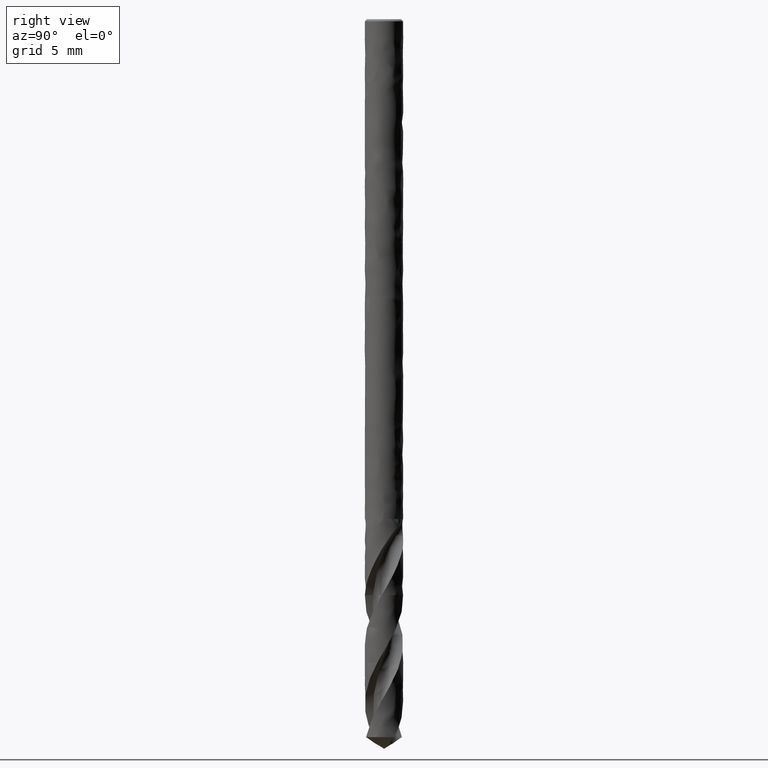
[diagram: clean part render]
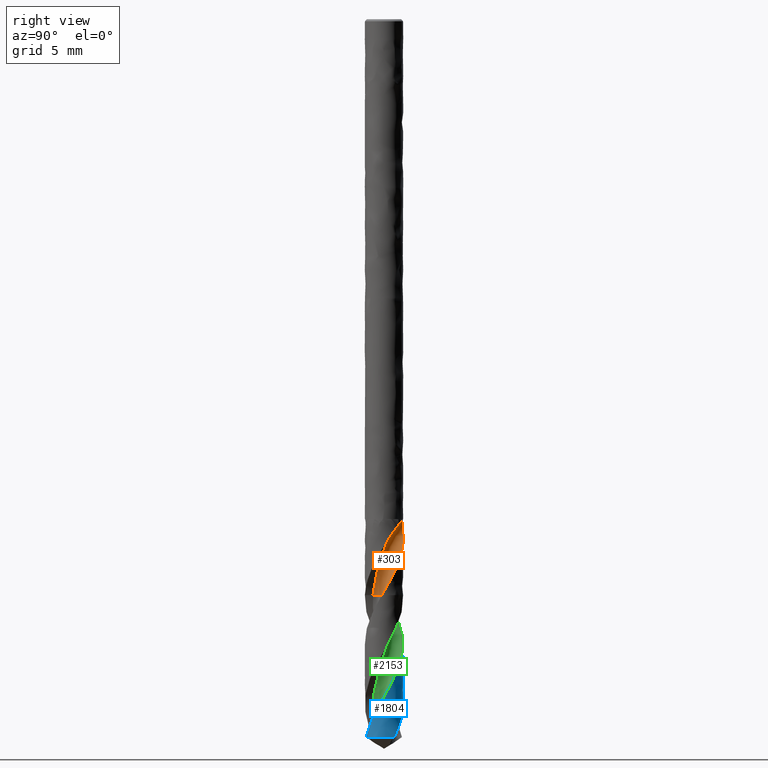
[diagram: same view with three faces highlighted in distinct colors, each labeled with its STEP entity id]
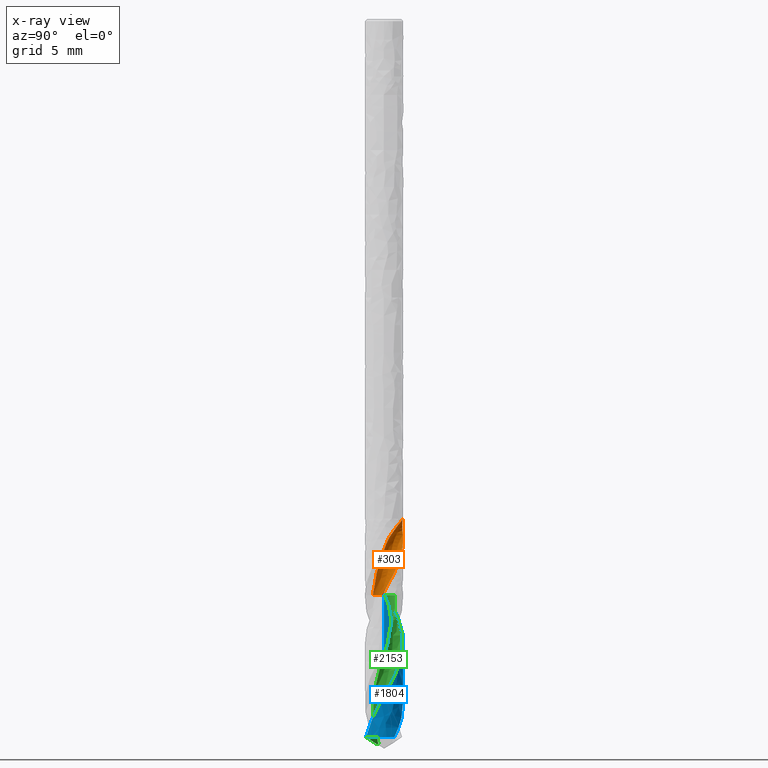
[diagram: x-ray of the same camera — body ghosted, the three highlighted faces saturated]
A machine part, right view with three faces highlighted in distinct colors.
The next image is the same camera in x-ray (body ghosted, the three faces saturated) — at least one of them is partly hidden behind the body in this view.
Their STEP definitions:

[orange] entity #303 — the highlighted face is a freeform B-spline surface patch.
#131 = VERTEX_POINT('', #132);
#132 = CARTESIAN_POINT('', (0.135998718460345, -0.575146931831075, -30.));
#138 = EDGE_CURVE('', #131, #139, #141, .T.);
#139 = VERTEX_POINT('', #140);
#140 = CARTESIAN_POINT('', (0.820233834326033, 0.572028370823349, -26.5929633243649));
#141 = (
   BOUNDED_CURVE ()
   B_SPLINE_CURVE (3, (#142, #143, #144, #145, #146, #147, #148, #149, #150, #151, #152, #153, #154, #155, #156, #157, #158, #159, #160, #161, #162, #163), .UNSPECIFIED., .F., .U.)
   B_SPLINE_CURVE_WITH_KNOTS ((4, 1, 1, 1, 1, 1, 1, 1, 1, 1, 1, 1, 1, 1, 1, 1, 1, 1, 1, 4), (8.05, 8.15692307692308, 8.34230769230769, 8.52769230769231, 8.71307692307692, 8.89846153846154, 9.08384615384615, 9.26923076923077, 9.45461538461539, 9.64, 9.82538461538462, 10.0107692307692, 10.1961538461538, 10.3815384615385, 10.5669230769231, 10.7523076923077, 10.9376923076923, 11.1230769230769, 11.3084615384615, 11.4570366756351), .UNSPECIFIED.)
   CURVE ()
   GEOMETRIC_REPRESENTATION_ITEM ()
   RATIONAL_B_SPLINE_CURVE ((1., 1., 1., 1., 1., 1., 1., 1., 1., 1., 1., 1., 1., 1., 1., 1., 1., 1., 1., 1., 1., 1.))
   REPRESENTATION_ITEM ('')
);
#142 = CARTESIAN_POINT('', (0.135998718460345, -0.575146931831075, -30.));
#143 = CARTESIAN_POINT('', (0.147771662794453, -0.572609203842834, -29.964358974359));
#144 = CARTESIAN_POINT('', (0.179766576752782, -0.564693730918025, -29.8669230769231));
#145 = CARTESIAN_POINT('', (0.230940897457232, -0.547437145756685, -29.7076923076923));
#146 = CARTESIAN_POINT('', (0.288220414245427, -0.521155402019601, -29.5223076923077));
#147 = CARTESIAN_POINT('', (0.342561594794833, -0.488939867044544, -29.3369230769231));
#148 = CARTESIAN_POINT('', (0.393360197098581, -0.451114799161863, -29.1515384615385));
#149 = CARTESIAN_POINT('', (0.44002547342994, -0.408057280179284, -28.9661538461538));
#150 = CARTESIAN_POINT('', (0.48208678838802, -0.360236378365412, -28.7807692307692));
#151 = CARTESIAN_POINT('', (0.518824832689817, -0.308049039845738, -28.5953846153846));
#152 = CARTESIAN_POINT('', (0.550675220987597, -0.252411691642796, -28.41));
#153 = CARTESIAN_POINT('', (0.573677729215098, -0.192374059954218, -28.2246153846154));
#154 = CARTESIAN_POINT('', (0.585983837036848, -0.129441704491652, -28.0392307692308));
#155 = CARTESIAN_POINT('', (0.587540930998465, -0.0654391917476242, -27.8538461538462));
#156 = CARTESIAN_POINT('', (0.578175999241782, -0.00330455330415409, -27.6684615384615));
#157 = CARTESIAN_POINT('', (0.590622643072406, 0.0583556109441788, -27.4830769230769));
#158 = CARTESIAN_POINT('', (0.618756652332065, 0.127578390239449, -27.2976923076923));
#159 = CARTESIAN_POINT('', (0.661664915326608, 0.210706769555553, -27.1123076923077));
#160 = CARTESIAN_POINT('', (0.715172873679118, 0.313913387666798, -26.9269230769231));
#161 = CARTESIAN_POINT('', (0.770331534028547, 0.433951622364874, -26.7538082876088));
#162 = CARTESIAN_POINT('', (0.80536475426185, 0.527146015567133, -26.6424883700894));
#163 = CARTESIAN_POINT('', (0.820233834326033, 0.572028370823349, -26.5929633243649));
#303 = ADVANCED_FACE('', (#304), #564, .T.);
#304 = FACE_OUTER_BOUND('', #305, .T.);
#305 = EDGE_LOOP('', (#306, #357, #369, #408, #419, #512, #520, #563));
#306 = ORIENTED_EDGE('', *, *, #307, .T.);
#307 = EDGE_CURVE('', #131, #308, #310, .T.);
#308 = VERTEX_POINT('', #309);
#309 = CARTESIAN_POINT('', (0.987539177526254, -0.109805153630184, -30.));
#310 = B_SPLINE_CURVE_WITH_KNOTS('', 3, (#311, #312, #313, #314, #315, #316, #317, #318, #319, #320, #321, #322, #323, #324, #325, #326, #327, #328, #329, #330, #331, #332, #333, #334, #335, #336, #337, #338, #339, #340, #341, #342, #343, #344, #345, #346, #347, #348, #349, #350, #351, #352, #353, #354, #355, #356), .UNSPECIFIED., .F., .U., (4, 3, 3, 3, 3, 3, 3, 3, 3, 3, 3, 3, 3, 3, 3, 4), (0., 0.0883804650688275, 0.176503198818123, 0.264378113281307, 0.35201191791785, 0.439408462193498, 0.526568933330127, 0.565361066972095, 0.576896466371133, 0.66525077227098, 0.75334848854044, 0.841199188792323, 0.928809285519201, 1.01618235689132, 1.10331933151318, 1.13618845493787), .UNSPECIFIED.);
#311 = CARTESIAN_POINT('', (0.135998718460344, -0.575146931831076, -30.));
#312 = CARTESIAN_POINT('', (0.139254349698433, -0.545867218731092, -30.));
#313 = CARTESIAN_POINT('', (0.144715616505441, -0.516750603756434, -30.));
#314 = CARTESIAN_POINT('', (0.152291705077035, -0.488281258559693, -30.));
#315 = CARTESIAN_POINT('', (0.159845700584251, -0.459894934445701, -30.));
#316 = CARTESIAN_POINT('', (0.169543820194594, -0.431995440178764, -30.));
#317 = CARTESIAN_POINT('', (0.181225732032189, -0.405044017569812, -30.));
#318 = CARTESIAN_POINT('', (0.192874791926491, -0.378168387914919, -30.));
#319 = CARTESIAN_POINT('', (0.206560363299047, -0.352088000098238, -30.));
#320 = CARTESIAN_POINT('', (0.222057458203465, -0.327231610270038, -30.));
#321 = CARTESIAN_POINT('', (0.237512032419371, -0.302443421018521, -30.));
#322 = CARTESIAN_POINT('', (0.25485248765614, -0.27873721118665, -30.));
#323 = CARTESIAN_POINT('', (0.273795306271487, -0.256500578944559, -30.));
#324 = CARTESIAN_POINT('', (0.292686838970405, -0.234324150312395, -30.));
#325 = CARTESIAN_POINT('', (0.313274561352267, -0.213488941809144, -30.));
#326 = CARTESIAN_POINT('', (0.335223675555826, -0.194333775919212, -30.));
#327 = CARTESIAN_POINT('', (0.357113501416446, -0.175230351435963, -30.));
#328 = CARTESIAN_POINT('', (0.380475507963778, -0.157694725951723, -30.));
#329 = CARTESIAN_POINT('', (0.404931823254602, -0.142010531819053, -30.));
#330 = CARTESIAN_POINT('', (0.415816489649585, -0.13503003542055, -30.));
#331 = CARTESIAN_POINT('', (0.426935816739858, -0.128402612571464, -30.));
#332 = CARTESIAN_POINT('', (0.438254063170917, -0.122149566095912, -30.));
#333 = CARTESIAN_POINT('', (0.441619706687306, -0.120290132706091, -30.));
#334 = CARTESIAN_POINT('', (0.445003617776127, -0.118463387354692, -30.));
#335 = CARTESIAN_POINT('', (0.448404833922169, -0.116669849638752, -30.));
#336 = CARTESIAN_POINT('', (0.474456128845162, -0.102932416324544, -30.));
#337 = CARTESIAN_POINT('', (0.501609875649799, -0.0911107608115625, -30.));
#338 = CARTESIAN_POINT('', (0.529414808785796, -0.0814013460748307, -30.));
#339 = CARTESIAN_POINT('', (0.557138993649892, -0.0717201284374162, -30.));
#340 = CARTESIAN_POINT('', (0.585663475437383, -0.064085438363584, -30.));
#341 = CARTESIAN_POINT('', (0.614516946489502, -0.0586234232074212, -30.));
#342 = CARTESIAN_POINT('', (0.643289515677027, -0.053176722923073, -30.));
#343 = CARTESIAN_POINT('', (0.672547019340507, -0.0498605926607932, -30.));
#344 = CARTESIAN_POINT('', (0.701808734156998, -0.0487295189952856, -30.));
#345 = CARTESIAN_POINT('', (0.730990307646074, -0.0476015430889327, -30.));
#346 = CARTESIAN_POINT('', (0.760335232974311, -0.0486404539355623, -30.));
#347 = CARTESIAN_POINT('', (0.789363977088427, -0.0518292744229569, -30.));
#348 = CARTESIAN_POINT('', (0.818314185181821, -0.0550094676934491, -30.));
#349 = CARTESIAN_POINT('', (0.847106979487776, -0.0603451423137144, -30.));
#350 = CARTESIAN_POINT('', (0.875274381596411, -0.0677495758733493, -30.));
#351 = CARTESIAN_POINT('', (0.903365670641873, -0.0751340014067878, -30.));
#352 = CARTESIAN_POINT('', (0.93098653181853, -0.0846158042685134, -30.));
#353 = CARTESIAN_POINT('', (0.957690447628035, -0.0960417020946588, -30.));
#354 = CARTESIAN_POINT('', (0.967763488475208, -0.100351689301757, -30.));
#355 = CARTESIAN_POINT('', (0.977720726319764, -0.104943039116932, -30.));
#356 = CARTESIAN_POINT('', (0.987539177526253, -0.109805153630183, -30.));
#357 = ORIENTED_EDGE('', *, *, #358, .T.);
#358 = EDGE_CURVE('', #308, #359, #361, .T.);
#359 = VERTEX_POINT('', #360);
#360 = CARTESIAN_POINT('', (0.982233978294788, 0.187660363111648, -29.4760360384215));
#361 = B_SPLINE_CURVE_WITH_KNOTS('', 3, (#362, #363, #364, #365, #366, #367, #368), .UNSPECIFIED., .F., .U., (4, 1, 1, 1, 4), (8.05, 8.15692307692308, 8.34230769230769, 8.52769230769231, 8.5739639615785), .UNSPECIFIED.);
#362 = CARTESIAN_POINT('', (0.987539177526254, -0.109805153630184, -30.));
#363 = CARTESIAN_POINT('', (0.990176477761371, -0.0897298836683726, -29.964358974359));
#364 = CARTESIAN_POINT('', (0.995730693712213, -0.0345961035338339, -29.8669230769231));
#365 = CARTESIAN_POINT('', (0.997337064114489, 0.0561859929321923, -29.7076923076923));
#366 = CARTESIAN_POINT('', (0.99041412164069, 0.135334942976583, -29.5686786794738));
#367 = CARTESIAN_POINT('', (0.983691189846862, 0.178962506302815, -29.4914599230502));
#368 = CARTESIAN_POINT('', (0.982233978294788, 0.187660363111648, -29.4760360384215));
#369 = ORIENTED_EDGE('', *, *, #370, .F.);
#370 = EDGE_CURVE('', #371, #359, #373, .T.);
#371 = VERTEX_POINT('', #372);
#372 = CARTESIAN_POINT('', (0.490775466668018, 0.871286084656924, -27.9558637886428));
#373 = B_SPLINE_CURVE_WITH_KNOTS('', 3, (#374, #375, #376, #377, #378, #379, #380, #381, #382, #383, #384, #385, #386, #387, #388, #389, #390, #391, #392, #393, #394, #395, #396, #397, #398, #399, #400, #401, #402, #403, #404, #405, #406, #407), .UNSPECIFIED., .F., .U., (4, 3, 3, 3, 3, 3, 3, 3, 3, 3, 3, 4), (0., 0.131414917532841, 0.328475479729887, 0.525501249424779, 0.656852061512318, 0.744423692268076, 0.941378259086426, 1.13828024597326, 1.33511823803413, 1.53189839187537, 1.72861731540205, 1.75093466749423), .UNSPECIFIED.);
#374 = CARTESIAN_POINT('', (0.490775466668019, 0.871286084656924, -27.9558637886428));
#375 = CARTESIAN_POINT('', (0.508996727088675, 0.861022466605744, -27.9943542995496));
#376 = CARTESIAN_POINT('', (0.527033612540354, 0.850108147702139, -28.0327646174293));
#377 = CARTESIAN_POINT('', (0.544788640034696, 0.838573394336791, -28.0711128126953));
#378 = CARTESIAN_POINT('', (0.571412829780769, 0.821276689931739, -28.1286170676173));
#379 = CARTESIAN_POINT('', (0.597432488260182, 0.802568572117667, -28.1859987467021));
#380 = CARTESIAN_POINT('', (0.622689291997332, 0.782469197880571, -28.2432077653732));
#381 = CARTESIAN_POINT('', (0.647941636458671, 0.762373372336901, -28.3004066833682));
#382 = CARTESIAN_POINT('', (0.672438294712122, 0.740875374762727, -28.3574693049333));
#383 = CARTESIAN_POINT('', (0.695923870179686, 0.718115566544919, -28.41442242776));
#384 = CARTESIAN_POINT('', (0.711580956127301, 0.70294232653172, -28.4523912627292));
#385 = CARTESIAN_POINT('', (0.726796920407524, 0.687201692631562, -28.4903220797967));
#386 = CARTESIAN_POINT('', (0.741495789266643, 0.670957520637386, -28.5282308401599));
#387 = CARTESIAN_POINT('', (0.751295530096569, 0.660127525685707, -28.5535046234899));
#388 = CARTESIAN_POINT('', (0.760866052116748, 0.649073291197624, -28.5787732200171));
#389 = CARTESIAN_POINT('', (0.77018106679327, 0.637825308648993, -28.6040477373214));
#390 = CARTESIAN_POINT('', (0.791131169751133, 0.612527829187582, -28.6608918495555));
#391 = CARTESIAN_POINT('', (0.810803358942247, 0.58623659869544, -28.7177875244286));
#392 = CARTESIAN_POINT('', (0.829136629533732, 0.559046017395212, -28.774661823147));
#393 = CARTESIAN_POINT('', (0.847465005787767, 0.531862695022389, -28.8315209384311));
#394 = CARTESIAN_POINT('', (0.864469559483466, 0.503754041776545, -28.8883872574712));
#395 = CARTESIAN_POINT('', (0.880045318542041, 0.47488971068263, -28.9452385327645));
#396 = CARTESIAN_POINT('', (0.895616015346008, 0.446034760742629, -29.0020713309082));
#397 = CARTESIAN_POINT('', (0.909766712839649, 0.416411804733838, -29.0589260485009));
#398 = CARTESIAN_POINT('', (0.922424079443914, 0.386178479024955, -29.1157658124612));
#399 = CARTESIAN_POINT('', (0.935077726849756, 0.355954036975746, -29.1725888748147));
#400 = CARTESIAN_POINT('', (0.946247320452676, 0.325099047787474, -29.2294297957214));
#401 = CARTESIAN_POINT('', (0.955872366106548, 0.293782265825895, -29.2862550521557));
#402 = CARTESIAN_POINT('', (0.965494416821339, 0.262475228426321, -29.3430626267848));
#403 = CARTESIAN_POINT('', (0.973578492629094, 0.230688522783995, -29.3998890869299));
#404 = CARTESIAN_POINT('', (0.980081614277475, 0.198595139303776, -29.4567005217961));
#405 = CARTESIAN_POINT('', (0.980819379881939, 0.19495421180114, -29.4631456607387));
#406 = CARTESIAN_POINT('', (0.98153685068964, 0.191309201948095, -29.4695908498747));
#407 = CARTESIAN_POINT('', (0.982233978294788, 0.187660363111643, -29.4760360384215));
#408 = ORIENTED_EDGE('', *, *, #409, .T.);
#409 = EDGE_CURVE('', #371, #410, #412, .T.);
#410 = VERTEX_POINT('', #411);
#411 = CARTESIAN_POINT('', (0.246002530381347, 0.969269186060291, -27.4932058231273));
#412 = B_SPLINE_CURVE_WITH_KNOTS('', 3, (#413, #414, #415, #416, #417, #418), .UNSPECIFIED., .F., .U., (4, 1, 1, 4), (10.0941362113572, 10.1961538461538, 10.3815384615385, 10.5567941768727), .UNSPECIFIED.);
#413 = CARTESIAN_POINT('', (0.490775466668015, 0.871286084656925, -27.9558637886428));
#414 = CARTESIAN_POINT('', (0.472504216284128, 0.878490821525172, -27.9218579103773));
#415 = CARTESIAN_POINT('', (0.420217025832769, 0.896330200800075, -27.8260571603168));
#416 = CARTESIAN_POINT('', (0.333971134635626, 0.913215551007818, -27.6718378384783));
#417 = CARTESIAN_POINT('', (0.274993855159336, 0.947991215435729, -27.5516243949054));
#418 = CARTESIAN_POINT('', (0.246002530381347, 0.96926918606029, -27.4932058231273));
#419 = ORIENTED_EDGE('', *, *, #420, .F.);
#420 = EDGE_CURVE('', #421, #410, #423, .T.);
#421 = VERTEX_POINT('', #422);
#422 = CARTESIAN_POINT('', (0.00772631099795137, 0.99997015161372, -26.));
#423 = B_SPLINE_CURVE_WITH_KNOTS('', 3, (#424, #425, #426, #427, #428, #429, #430, #431, #432, #433, #434, #435, #436, #437, #438, #439, #440, #441, #442, #443, #444, #445, #446, #447, #448, #449, #450, #451, #452, #453, #454, #455, #456, #457, #458, #459, #460, #461, #462, #463, #464, #465, #466, #467, #468, #469, #470, #471, #472, #473, #474, #475, #476, #477, #478, #479, #480, #481, #482, #483, #484, #485, #486, #487, #488, #489, #490, #491, #492, #493, #494, #495, #496, #497, #498, #499, #500, #501, #502, #503, #504, #505, #506, #507, #508, #509, #510, #511), .UNSPECIFIED., .F., .U., (4, 3, 3, 3, 3, 3, 3, 3, 3, 3, 3, 3, 3, 3, 3, 3, 3, 3, 3, 3, 3, 3, 3, 3, 3, 3, 3, 3, 3, 4), (0., 0.0172874337608875, 0.0760638562588393, 0.134571616713359, 0.173356254986409, 0.212042548963615, 0.250657613759585, 0.28924385214064, 0.327845348796306, 0.366494484872518, 0.405207114387865, 0.443985592686044, 0.502249842305958, 0.560640228683373, 0.619123485872933, 0.707096440453135, 0.795174061407525, 0.883284322888988, 0.971379769013531, 1.05943131893812, 1.14742117820325, 1.23533724755918, 1.32317583754008, 1.36213641245224, 1.38810251818908, 1.47607046198281, 1.56398738523536, 1.6518513593332, 1.73965887937366, 1.82201907213121), .UNSPECIFIED.);
#424 = CARTESIAN_POINT('', (0.00772631098295753, 0.999970151613841, -26.));
#425 = CARTESIAN_POINT('', (0.00196400752444216, 1.00001467429127, -26.0000053258871));
#426 = CARTESIAN_POINT('', (-0.00379996085726174, 1.00000935672964, -26.0001194226774));
#427 = CARTESIAN_POINT('', (-0.0095575837068471, 0.999954325253755, -26.0003494279828));
#428 = CARTESIAN_POINT('', (-0.0291332175384423, 0.999767220948854, -26.0011314346815));
#429 = CARTESIAN_POINT('', (-0.0487265070050468, 0.998997219917961, -26.0032624623447));
#430 = CARTESIAN_POINT('', (-0.0679101674261391, 0.997691439855107, -26.0070219960501));
#431 = CARTESIAN_POINT('', (-0.0870061409620789, 0.996391628402201, -26.0107643452457));
#432 = CARTESIAN_POINT('', (-0.105847624699667, 0.994547351160411, -26.0161638579928));
#433 = CARTESIAN_POINT('', (-0.123823220522418, 0.992304293077209, -26.0233886443463));
#434 = CARTESIAN_POINT('', (-0.135739195024123, 0.99081737585962, -26.0281779359401));
#435 = CARTESIAN_POINT('', (-0.147339230514646, 0.989149663337741, -26.0337929798066));
#436 = CARTESIAN_POINT('', (-0.158418290266976, 0.987372090606622, -26.0402143001768));
#437 = CARTESIAN_POINT('', (-0.169469257393502, 0.985599025179074, -26.0466193383215));
#438 = CARTESIAN_POINT('', (-0.180059219441125, 0.983707877152713, -26.0538619533324));
#439 = CARTESIAN_POINT('', (-0.189999515367349, 0.981784184105741, -26.0618483211574));
#440 = CARTESIAN_POINT('', (-0.199921509226683, 0.979864032961253, -26.0698199844868));
#441 = CARTESIAN_POINT('', (-0.209250610328152, 0.977901746799412, -26.0785764455466));
#442 = CARTESIAN_POINT('', (-0.217850575693299, 0.975982134401087, -26.0879591979551));
#443 = CARTESIAN_POINT('', (-0.226444121124382, 0.974063955006792, -26.0973349460735));
#444 = CARTESIAN_POINT('', (-0.234356114061115, 0.972178850838706, -26.1073841557696));
#445 = CARTESIAN_POINT('', (-0.241520383325684, 0.970395746300559, -26.1179163384567));
#446 = CARTESIAN_POINT('', (-0.248687485579225, 0.968611936663915, -26.1284526859172));
#447 = CARTESIAN_POINT('', (-0.255141795677507, 0.966921915630207, -26.1395201127976));
#448 = CARTESIAN_POINT('', (-0.260879613050615, 0.965371341761586, -26.1509322607904));
#449 = CARTESIAN_POINT('', (-0.266624511659388, 0.963818854276991, -26.1623584929034));
#450 = CARTESIAN_POINT('', (-0.271675405472682, 0.962399799947363, -26.1741736471042));
#451 = CARTESIAN_POINT('', (-0.276069484495985, 0.961137679903417, -26.1862182301292));
#452 = CARTESIAN_POINT('', (-0.280470782184886, 0.959873486427816, -26.1982826001942));
#453 = CARTESIAN_POINT('', (-0.284228056815733, 0.958762413263087, -26.2106138862455));
#454 = CARTESIAN_POINT('', (-0.287398016631452, 0.95781124447164, -26.2230864667424));
#455 = CARTESIAN_POINT('', (-0.290573368434182, 0.956858457776475, -26.2355802626477));
#456 = CARTESIAN_POINT('', (-0.293167785993098, 0.956063474143145, -26.2482455456756));
#457 = CARTESIAN_POINT('', (-0.295242908241833, 0.955422223487034, -26.2609879262589));
#458 = CARTESIAN_POINT('', (-0.298360757265265, 0.954458751222617, -26.2801332170397));
#459 = CARTESIAN_POINT('', (-0.300317806994106, 0.953839762677668, -26.2995110091674));
#460 = CARTESIAN_POINT('', (-0.301307852082411, 0.95352691533773, -26.3189046513649));
#461 = CARTESIAN_POINT('', (-0.302300040527544, 0.953213390711991, -26.3383402790193));
#462 = CARTESIAN_POINT('', (-0.302324586337989, 0.953205390504635, -26.3578483253974));
#463 = CARTESIAN_POINT('', (-0.301542992733488, 0.953452580642234, -26.3772945169627));
#464 = CARTESIAN_POINT('', (-0.300760155992277, 0.953700163939567, -26.3967716379963));
#465 = CARTESIAN_POINT('', (-0.299167363395816, 0.954203626872317, -26.4162260077868));
#466 = CARTESIAN_POINT('', (-0.296892979752641, 0.954910759481535, -26.435574380254));
#467 = CARTESIAN_POINT('', (-0.29347175702063, 0.955974457844151, -26.4646790090666));
#468 = CARTESIAN_POINT('', (-0.288502980813909, 0.957500766773461, -26.4936130834965));
#469 = CARTESIAN_POINT('', (-0.282308965909467, 0.959323536543918, -26.5222177566678));
#470 = CARTESIAN_POINT('', (-0.276107581636963, 0.961148474966137, -26.5508564624283));
#471 = CARTESIAN_POINT('', (-0.268663267886244, 0.963273936044112, -26.579226624308));
#472 = CARTESIAN_POINT('', (-0.260211111511362, 0.965551747679028, -26.6072504652572));
#473 = CARTESIAN_POINT('', (-0.251755822867057, 0.967830403444058, -26.6352846915112));
#474 = CARTESIAN_POINT('', (-0.242278407600293, 0.970264779955003, -26.6630124496522));
#475 = CARTESIAN_POINT('', (-0.231957882326462, 0.972725830245413, -26.6903991619294));
#476 = CARTESIAN_POINT('', (-0.22163909240403, 0.975186466720929, -26.7177812692501));
#477 = CARTESIAN_POINT('', (-0.210466658832815, 0.977676153631823, -26.7448499592448));
#478 = CARTESIAN_POINT('', (-0.198588803727451, 0.980082898041847, -26.771597596488));
#479 = CARTESIAN_POINT('', (-0.186716867119871, 0.982488443219237, -26.7983319059182));
#480 = CARTESIAN_POINT('', (-0.174130584588898, 0.984813042081892, -26.8247647889868));
#481 = CARTESIAN_POINT('', (-0.160955909898685, 0.986961597565321, -26.8509041172733));
#482 = CARTESIAN_POINT('', (-0.147790465646443, 0.989108647728232, -26.8770251318287));
#483 = CARTESIAN_POINT('', (-0.134029727911344, 0.991081084638355, -26.9028672067247));
#484 = CARTESIAN_POINT('', (-0.119791303444234, 0.992799095295285, -26.9284516132303));
#485 = CARTESIAN_POINT('', (-0.105564819580933, 0.994515665196979, -26.9540145641835));
#486 = CARTESIAN_POINT('', (-0.0908556334920489, 0.995978942175521, -26.9793313923168));
#487 = CARTESIAN_POINT('', (-0.0757730033635135, 0.997125093436765, -27.0044312832024));
#488 = CARTESIAN_POINT('', (-0.0607036653755933, 0.99827023460868, -27.029509053856));
#489 = CARTESIAN_POINT('', (-0.0452561663329958, 0.999099172334949, -27.0543786162178));
#490 = CARTESIAN_POINT('', (-0.0295379920003732, 0.999563658317248, -27.0790770802402));
#491 = CARTESIAN_POINT('', (-0.0225662372317477, 0.999769679849617, -27.0900320188153));
#492 = CARTESIAN_POINT('', (-0.0155406190332311, 0.999904233887445, -27.1009544027664));
#493 = CARTESIAN_POINT('', (-0.00847066859247713, 0.99996412324323, -27.1118480111052));
#494 = CARTESIAN_POINT('', (-0.00375874939948147, 1.00000403778115, -27.1191082886196));
#495 = CARTESIAN_POINT('', (0.000972982528125538, 1.00001080299376, -27.12635599846));
#496 = CARTESIAN_POINT('', (0.00572188354140633, 0.999983629890381, -27.1335921995369));
#497 = CARTESIAN_POINT('', (0.0218102050499226, 0.999891572881349, -27.158106993402));
#498 = CARTESIAN_POINT('', (0.0380982356497104, 0.999408700825087, -27.1824929435558));
#499 = CARTESIAN_POINT('', (0.0544819990008416, 0.998514752913028, -27.2067950183085));
#500 = CARTESIAN_POINT('', (0.0708562599305578, 0.997621323481956, -27.2310829980971));
#501 = CARTESIAN_POINT('', (0.0873297955817186, 0.996316996895141, -27.2552923816268));
#502 = CARTESIAN_POINT('', (0.103794881002057, 0.994598724450303, -27.2794743811566));
#503 = CARTESIAN_POINT('', (0.120250050102274, 0.992881486858257, -27.3036418167506));
#504 = CARTESIAN_POINT('', (0.136698840651517, 0.990750564769908, -27.3277876766197));
#505 = CARTESIAN_POINT('', (0.153034541470358, 0.988220840256347, -27.3519647693087));
#506 = CARTESIAN_POINT('', (0.169359746331088, 0.98569274113265, -27.3761263278156));
#507 = CARTESIAN_POINT('', (0.185575367051684, 0.982765913115138, -27.4003239643886));
#508 = CARTESIAN_POINT('', (0.201581769731714, 0.979471689285522, -27.4246062145111));
#509 = CARTESIAN_POINT('', (0.216595180991649, 0.976381829675904, -27.4473820633194));
#510 = CARTESIAN_POINT('', (0.231427342767012, 0.972968398916198, -27.4702369579124));
#511 = CARTESIAN_POINT('', (0.246002530381347, 0.969269186060291, -27.4932058231273));
#512 = ORIENTED_EDGE('', *, *, #513, .T.);
#513 = EDGE_CURVE('', #421, #514, #516, .T.);
#514 = VERTEX_POINT('', #515);
#515 = CARTESIAN_POINT('', (0.0085737161553439, 0.999963245020181, -26.));
#516 = LINE('', #517, #518);
#517 = CARTESIAN_POINT('', (0.00772631099795137, 0.99997015161372, -26.));
#518 = VECTOR('', #519, 0.00084743330227798);
#519 = DIRECTION('', (0.000847405157392526, -6.90659353885792E-6, 0.));
#520 = ORIENTED_EDGE('', *, *, #521, .T.);
#521 = EDGE_CURVE('', #514, #139, #522, .T.);
#522 = B_SPLINE_CURVE_WITH_KNOTS('', 3, (#523, #524, #525, #526, #527, #528, #529, #530, #531, #532, #533, #534, #535, #536, #537, #538, #539, #540, #541, #542, #543, #544, #545, #546, #547, #548, #549, #550, #551, #552, #553, #554, #555, #556, #557, #558, #559, #560, #561, #562), .UNSPECIFIED., .F., .U., (4, 3, 3, 3, 3, 3, 3, 3, 3, 3, 3, 3, 3, 4), (0., 0.0588676359280913, 0.117473793978531, 0.175893472582458, 0.23418115746177, 0.292374836441839, 0.379386324441757, 0.466240350632785, 0.552996867439667, 0.639694269644428, 0.769031744835816, 0.898333247745336, 1.02767732757917, 1.151236942157), .UNSPECIFIED.);
#523 = CARTESIAN_POINT('', (0.00857371615550034, 0.99996324502018, -26.));
#524 = CARTESIAN_POINT('', (0.0281955318757105, 0.999795006958153, -26.0000181166948));
#525 = CARTESIAN_POINT('', (0.0478447434037307, 0.999044920849632, -26.00129224874));
#526 = CARTESIAN_POINT('', (0.0672909063978631, 0.997733398216256, -26.0035662183101));
#527 = CARTESIAN_POINT('', (0.0866506935532513, 0.996427701095477, -26.0058300873772));
#528 = CARTESIAN_POINT('', (0.105880716410157, 0.994562436101714, -26.0090921293414));
#529 = CARTESIAN_POINT('', (0.124840522636852, 0.992176820888172, -26.0131499483029));
#530 = CARTESIAN_POINT('', (0.143740000490407, 0.989798796484529, -26.0171948556549));
#531 = CARTESIAN_POINT('', (0.162421490164328, 0.986898320831081, -26.022041189864));
#532 = CARTESIAN_POINT('', (0.18079612212115, 0.983520595730439, -26.0275339498518));
#533 = CARTESIAN_POINT('', (0.199129238339297, 0.980150502279396, -26.0330142994692));
#534 = CARTESIAN_POINT('', (0.217193899601074, 0.976299031741094, -26.0391493939458));
#535 = CARTESIAN_POINT('', (0.234931172026889, 0.97201200836722, -26.0458206389233));
#536 = CARTESIAN_POINT('', (0.252639837925477, 0.967731899069418, -26.0524811245717));
#537 = CARTESIAN_POINT('', (0.270050310963938, 0.963011134343171, -26.0596868197025));
#538 = CARTESIAN_POINT('', (0.287121675198787, 0.957894119217278, -26.0673459927612));
#539 = CARTESIAN_POINT('', (0.312646866771078, 0.950243131893131, -26.0787980276965));
#540 = CARTESIAN_POINT('', (0.337471462070299, 0.941688565824157, -26.0912882377451));
#541 = CARTESIAN_POINT('', (0.361503178369914, 0.932370876866311, -26.1045878392495));
#542 = CARTESIAN_POINT('', (0.385491405268231, 0.923070049821663, -26.1178633729054));
#543 = CARTESIAN_POINT('', (0.40874441093088, 0.912988252184789, -26.1319765322372));
#544 = CARTESIAN_POINT('', (0.431202090790575, 0.902255372329719, -26.1467629487274));
#545 = CARTESIAN_POINT('', (0.453634557834831, 0.891534542077307, -26.1615327647856));
#546 = CARTESIAN_POINT('', (0.475314708622501, 0.880144719081453, -26.1770019813742));
#547 = CARTESIAN_POINT('', (0.49620223748813, 0.868206968131318, -26.1930488030385));
#548 = CARTESIAN_POINT('', (0.517075533901794, 0.856277351387392, -26.2090846906368));
#549 = CARTESIAN_POINT('', (0.53718924974289, 0.843782470518272, -26.2257222545205));
#550 = CARTESIAN_POINT('', (0.556516648685946, 0.830836457875655, -26.2428690430434));
#551 = CARTESIAN_POINT('', (0.585349773067316, 0.811523254176225, -26.2684490751873));
#552 = CARTESIAN_POINT('', (0.61249832470549, 0.791160548155259, -26.2952206492671));
#553 = CARTESIAN_POINT('', (0.637914325559936, 0.770107338781689, -26.3229600836314));
#554 = CARTESIAN_POINT('', (0.663323257530862, 0.749059984880251, -26.3506918029019));
#555 = CARTESIAN_POINT('', (0.687060764661984, 0.72727327973745, -26.379460352683));
#556 = CARTESIAN_POINT('', (0.709121273400931, 0.705086533420008, -26.4091038245761));
#557 = CARTESIAN_POINT('', (0.73118904631384, 0.68289248136058, -26.4387570575921));
#558 = CARTESIAN_POINT('', (0.751625070605199, 0.660252344445498, -26.4693442658604));
#559 = CARTESIAN_POINT('', (0.770464862798542, 0.63748246657679, -26.5007364889166));
#560 = CARTESIAN_POINT('', (0.788462110644182, 0.61573089250354, -26.530724803701));
#561 = CARTESIAN_POINT('', (0.805031683782676, 0.593826797031181, -26.5614981982408));
#562 = CARTESIAN_POINT('', (0.820233834326033, 0.572028370823349, -26.5929633243649));
#563 = ORIENTED_EDGE('', *, *, #138, .F.);
#564 = (
   BOUNDED_SURFACE ()
   B_SPLINE_SURFACE (3, 2, ((#565, #566, #567, #568, #569), (#570, #571, #572, #573, #574), (#575, #576, #577, #578, #579), (#580, #581, #582, #583, #584), (#585, #586, #587, #588, #589), (#590, #591, #592, #593, #594), (#595, #596, #597, #598, #599), (#600, #601, #602, #603, #604), (#605, #606, #607, #608, #609), (#610, #611, #612, #613, #614), (#615, #616, #617, #618, #619), (#620, #621, #622, #623, #624), (#625, #626, #627, #628, #629), (#630, #631, #632, #633, #634), (#635, #636, #637, #638, #639), (#640, #641, #642, #643, #644), (#645, #646, #647, #648, #649), (#650, #651, #652, #653, #654), (#655, #656, #657, #658, #659), (#660, #661, #662, #663, #664), (#665, #666, #667, #668, #669), (#670, #671, #672, #673, #674), (#675, #676, #677, #678, #679), (#680, #681, #682, #683, #684)), .UNSPECIFIED., .F., .F., .U.)
   B_SPLINE_SURFACE_WITH_KNOTS ((4, 1, 1, 1, 1, 1, 1, 1, 1, 1, 1, 1, 1, 1, 1, 1, 1, 1, 1, 1, 1, 4), (3, 2, 3), (8.05, 8.15692307692308, 8.34230769230769, 8.52769230769231, 8.71307692307692, 8.89846153846154, 9.08384615384615, 9.26923076923077, 9.45461538461539, 9.64, 9.82538461538462, 10.0107692307692, 10.1961538461538, 10.3815384615385, 10.5669230769231, 10.7523076923077, 10.9376923076923, 11.1230769230769, 11.3084615384615, 11.4938461538462, 11.6792307692308, 12.05), (0., 0.5, 1.), .UNSPECIFIED.)
   GEOMETRIC_REPRESENTATION_ITEM ()
   RATIONAL_B_SPLINE_SURFACE (((1., 0.887010833178222, 1., 0.887010833178222, 1.), (1., 0.887010833178222, 1., 0.887010833178222, 1.), (1., 0.887010833178222, 1., 0.887010833178222, 1.), (1., 0.887010833178221, 1., 0.887010833178221, 1.), (1., 0.887010833178222, 1., 0.887010833178222, 1.), (1., 0.887010833178222, 1., 0.887010833178222, 1.), (1., 0.887010833178222, 1., 0.887010833178222, 1.), (1., 0.887010833178222, 1., 0.887010833178222, 1.), (1., 0.887010833178222, 1., 0.887010833178222, 1.), (1., 0.887010833178222, 1., 0.887010833178222, 1.), (1., 0.887010833178222, 1., 0.887010833178222, 1.), (1., 0.887010833178222, 1., 0.887010833178222, 1.), (1., 0.887010833178222, 1., 0.887010833178222, 1.), (1., 0.887010833178222, 1., 0.887010833178222, 1.), (1., 0.887010833178222, 1., 0.887010833178222, 1.), (1., 0.887010833178222, 1., 0.887010833178222, 1.), (1., 0.887010833178222, 1., 0.887010833178222, 1.), (1., 0.887010833178222, 1., 0.887010833178222, 1.), (1., 0.887010833178222, 1., 0.887010833178222, 1.), (1., 0.887010833178222, 1., 0.887010833178222, 1.), (1., 0.887010833178222, 1., 0.887010833178222, 1.), (1., 0.887010833178222, 1., 0.887010833178222, 1.), (1., 0.887010833178222, 1., 0.887010833178222, 1.), (1., 0.887010833178222, 1., 0.887010833178222, 1.)))
   REPRESENTATION_ITEM ('')
   SURFACE ()
);
#565 = CARTESIAN_POINT('', (0.987539177526254, -0.109805153630187, -30.));
#566 = CARTESIAN_POINT('', (0.711223013043446, 0.0270271028350572, -30.));
#567 = CARTESIAN_POINT('', (0.440648149505028, -0.120834090129921, -30.));
#568 = CARTESIAN_POINT('', (0.17007328596661, -0.268695283094899, -30.));
#569 = CARTESIAN_POINT('', (0.135998718460344, -0.575146931831076, -30.));
#570 = CARTESIAN_POINT('', (0.990176477761371, -0.0897298836683747, -29.964358974359));
#571 = CARTESIAN_POINT('', (0.710960573881555, 0.0415282545138635, -29.964358974359));
#572 = CARTESIAN_POINT('', (0.443288538540086, -0.111905448806645, -29.964358974359));
#573 = CARTESIAN_POINT('', (0.175616503198617, -0.265339152127154, -29.964358974359));
#574 = CARTESIAN_POINT('', (0.147771662794452, -0.572609203842834, -29.964358974359));
#575 = CARTESIAN_POINT('', (0.995730693712213, -0.034596103533835, -29.8669230769231));
#576 = CARTESIAN_POINT('', (0.709043525330155, 0.0811743026643835, -29.8669230769231));
#577 = CARTESIAN_POINT('', (0.449772956036564, -0.0872629003651146, -29.8669230769231));
#578 = CARTESIAN_POINT('', (0.190502386742973, -0.255700103394613, -29.8669230769231));
#579 = CARTESIAN_POINT('', (0.179766576752782, -0.564693730918026, -29.8669230769231));
#580 = CARTESIAN_POINT('', (0.99733706411449, 0.0561859929321922, -29.7076923076923));
#581 = CARTESIAN_POINT('', (0.700546298644127, 0.145654471030807, -29.7076923076923));
#582 = CARTESIAN_POINT('', (0.457025822309832, -0.0461452803967797, -29.7076923076923));
#583 = CARTESIAN_POINT('', (0.213505345975538, -0.237945031824367, -29.7076923076923));
#584 = CARTESIAN_POINT('', (0.230940897457232, -0.547437145756685, -29.7076923076923));
#585 = CARTESIAN_POINT('', (0.988104825201783, 0.161736778492695, -29.5223076923077));
#586 = CARTESIAN_POINT('', (0.682803566936353, 0.219446362372782, -29.5223076923077));
#587 = CARTESIAN_POINT('', (0.460417035596537, 0.00245907000589562, -29.5223076923077));
#588 = CARTESIAN_POINT('', (0.238030504256721, -0.214528222360991, -29.5223076923077));
#589 = CARTESIAN_POINT('', (0.288220414245427, -0.521155402019601, -29.5223076923077));
#590 = CARTESIAN_POINT('', (0.967816253554167, 0.265989610139301, -29.3369230769231));
#591 = CARTESIAN_POINT('', (0.657366331662267, 0.291145322590118, -29.3369230769231));
#592 = CARTESIAN_POINT('', (0.458693218518417, 0.0512683583244212, -29.3369230769231));
#593 = CARTESIAN_POINT('', (0.260020105374567, -0.188608605941276, -29.3369230769231));
#594 = CARTESIAN_POINT('', (0.342561594794833, -0.488939867044544, -29.3369230769231));
#595 = CARTESIAN_POINT('', (0.936643176500993, 0.367804455385408, -29.1515384615385));
#596 = CARTESIAN_POINT('', (0.624477312158239, 0.359961994127278, -29.1515384615385));
#597 = CARTESIAN_POINT('', (0.451850496309933, 0.0997524372130117, -29.1515384615385));
#598 = CARTESIAN_POINT('', (0.279223680461627, -0.160457119701254, -29.1515384615385));
#599 = CARTESIAN_POINT('', (0.393360197098581, -0.451114799161863, -29.1515384615385));
#600 = CARTESIAN_POINT('', (0.894848687773712, 0.466032786048451, -28.9661538461538));
#601 = CARTESIAN_POINT('', (0.584444782208922, 0.425110687686452, -28.9661538461538));
#602 = CARTESIAN_POINT('', (0.439925836755449, 0.147370742541285, -28.9661538461538));
#603 = CARTESIAN_POINT('', (0.295406891301978, -0.130369202603883, -28.9661538461538));
#604 = CARTESIAN_POINT('', (0.44002547342994, -0.408057280179284, -28.9661538461538));
#605 = CARTESIAN_POINT('', (0.842909428727792, 0.559664252265892, -28.7807692307692));
#606 = CARTESIAN_POINT('', (0.537713626306997, 0.485926263855033, -28.7807692307692));
#607 = CARTESIAN_POINT('', (0.423063129513691, 0.193630125777224, -28.7807692307692));
#608 = CARTESIAN_POINT('', (0.308412632720386, -0.0986660123005849, -28.7807692307692));
#609 = CARTESIAN_POINT('', (0.48208678838802, -0.360236378365412, -28.7807692307692));
#610 = CARTESIAN_POINT('', (0.781047267619473, 0.647335538712312, -28.5953846153846));
#611 = CARTESIAN_POINT('', (0.484585710744042, 0.541466503504963, -28.5953846153846));
#612 = CARTESIAN_POINT('', (0.401265184053352, 0.237895429203202, -28.5953846153846));
#613 = CARTESIAN_POINT('', (0.317944657362662, -0.0656756450985602, -28.5953846153846));
#614 = CARTESIAN_POINT('', (0.518824832689817, -0.308049039845738, -28.5953846153846));
#615 = CARTESIAN_POINT('', (0.710959485428949, 0.729218306022201, -28.41));
#616 = CARTESIAN_POINT('', (0.426245163383711, 0.592033151549296, -28.41));
#617 = CARTESIAN_POINT('', (0.375315236899481, 0.280122660584748, -28.41));
#618 = CARTESIAN_POINT('', (0.32438531041525, -0.0317878303797997, -28.41));
#619 = CARTESIAN_POINT('', (0.550675220987597, -0.252411691642796, -28.41));
#620 = CARTESIAN_POINT('', (0.628902700605792, 0.799579347287384, -28.2246153846154));
#621 = CARTESIAN_POINT('', (0.360648682508348, 0.633167522592078, -28.2246153846154));
#622 = CARTESIAN_POINT('', (0.343101085164187, 0.317976793903412, -28.2246153846154));
#623 = CARTESIAN_POINT('', (0.325553487820027, 0.00278606521474605, -28.2246153846154));
#624 = CARTESIAN_POINT('', (0.573677729215098, -0.192374059954218, -28.2246153846154));
#625 = CARTESIAN_POINT('', (0.536215743303616, 0.854640699813389, -28.0392307692308));
#626 = CARTESIAN_POINT('', (0.289145664778894, 0.662335419854309, -28.0392307692308));
#627 = CARTESIAN_POINT('', (0.304959352815758, 0.349645682777723, -28.0392307692308));
#628 = CARTESIAN_POINT('', (0.320773040852623, 0.0369559457011362, -28.0392307692308));
#629 = CARTESIAN_POINT('', (0.585983837036848, -0.129441704491652, -28.0392307692308));
#630 = CARTESIAN_POINT('', (0.435757792604633, 0.89328760612342, -27.8538461538462));
#631 = CARTESIAN_POINT('', (0.213879856254798, 0.679050613027453, -27.8538461538462));
#632 = CARTESIAN_POINT('', (0.262108571075224, 0.374417556849315, -27.8538461538462));
#633 = CARTESIAN_POINT('', (0.31033728589565, 0.0697845006711776, -27.8538461538462));
#634 = CARTESIAN_POINT('', (0.587540930998465, -0.0654391917476242, -27.8538461538462));
#635 = CARTESIAN_POINT('', (0.332082966535631, 0.913585219396387, -27.6684615384615));
#636 = CARTESIAN_POINT('', (0.13828273132137, 0.682425816404246, -27.6684615384615));
#637 = CARTESIAN_POINT('', (0.216478180560816, 0.391086370947529, -27.6684615384615));
#638 = CARTESIAN_POINT('', (0.294673629800261, 0.0997469254908115, -27.6684615384615));
#639 = CARTESIAN_POINT('', (0.578175999241782, -0.00330455330415409, -27.6684615384615));
#640 = CARTESIAN_POINT('', (0.241489776489583, 0.968149902315222, -27.4830769230769));
#641 = CARTESIAN_POINT('', (0.0683156440987682, 0.711464097232822, -27.4830769230769));
#642 = CARTESIAN_POINT('', (0.179251744347074, 0.422379223325852, -27.4830769230769));
#643 = CARTESIAN_POINT('', (0.29018784459538, 0.133294349418882, -27.4830769230769));
#644 = CARTESIAN_POINT('', (0.590622643072406, 0.0583556109441788, -27.4830769230769));
#645 = CARTESIAN_POINT('', (0.147790621192593, 1.05182837934024, -27.2976923076923));
#646 = CARTESIAN_POINT('', (-0.00694169398868803, 0.760796821836612, -27.2976923076923));
#647 = CARTESIAN_POINT('', (0.142706591362989, 0.467118685919674, -27.2976923076923));
#648 = CARTESIAN_POINT('', (0.292354876714666, 0.173440550002736, -27.2976923076923));
#649 = CARTESIAN_POINT('', (0.618756652332065, 0.127578390239449, -27.2976923076923));
#650 = CARTESIAN_POINT('', (0.0404261589924539, 1.16676065284728, -27.1123076923077));
#651 = CARTESIAN_POINT('', (-0.0951966080709974, 0.830819241881445, -27.1123076923077));
#652 = CARTESIAN_POINT('', (0.102200462062672, 0.527035497664764, -27.1123076923077));
#653 = CARTESIAN_POINT('', (0.299597532196341, 0.223251753448082, -27.1123076923077));
#654 = CARTESIAN_POINT('', (0.661664915326608, 0.210706769555553, -27.1123076923077));
#655 = CARTESIAN_POINT('', (-0.0927369745077228, 1.3098264238497, -26.9269230769231));
#656 = CARTESIAN_POINT('', (-0.204713151757985, 0.918033173306352, -26.9269230769231));
#657 = CARTESIAN_POINT('', (0.0519981936598123, 0.601584282367085, -26.9269230769231));
#658 = CARTESIAN_POINT('', (0.30870953907761, 0.285135391427817, -26.9269230769231));
#659 = CARTESIAN_POINT('', (0.715172873679118, 0.313913387666798, -26.9269230769231));
#660 = CARTESIAN_POINT('', (-0.26287816420966, 1.47602066582271, -26.7415384615385));
#661 = CARTESIAN_POINT('', (-0.34287954750588, 1.01770654933473, -26.7415384615385));
#662 = CARTESIAN_POINT('', (-0.0133375103924511, 0.689295074997134, -26.7415384615385));
#663 = CARTESIAN_POINT('', (0.316204526720977, 0.360883600659538, -26.7415384615385));
#664 = CARTESIAN_POINT('', (0.774241004567966, 0.442459550932809, -26.7415384615385));
#665 = CARTESIAN_POINT('', (-0.480328292019408, 1.65766667682932, -26.5561538461538));
#666 = CARTESIAN_POINT('', (-0.516199382904868, 1.12330475496513, -26.5561538461538));
#667 = CARTESIAN_POINT('', (-0.0990505346977289, 0.787423470670868, -26.5561538461538));
#668 = CARTESIAN_POINT('', (0.31809831350941, 0.45154218637661, -26.5561538461538));
#669 = CARTESIAN_POINT('', (0.832502903960059, 0.600596928075772, -26.5561538461538));
#670 = CARTESIAN_POINT('', (-0.845114320127215, 1.90717488868613, -26.3089743589744));
#671 = CARTESIAN_POINT('', (-0.801093950030312, 1.2613387531213, -26.3089743589744));
#672 = CARTESIAN_POINT('', (-0.246806912299644, 0.926961740172531, -26.3089743589744));
#673 = CARTESIAN_POINT('', (0.307480125431024, 0.592584727223763, -26.3089743589744));
#674 = CARTESIAN_POINT('', (0.899311722968389, 0.854839311818867, -26.3089743589744));
#675 = CARTESIAN_POINT('', (-1.21369309213472, 2.08460968103549, -26.1235897435897));
#676 = CARTESIAN_POINT('', (-1.08102575733506, 1.34791368411966, -26.1235897435897));
#677 = CARTESIAN_POINT('', (-0.401464868327365, 1.03403693804611, -26.1235897435897));
#678 = CARTESIAN_POINT('', (0.278096020680334, 0.720160191972555, -26.1235897435897));
#679 = CARTESIAN_POINT('', (0.924988911881845, 1.09679157795573, -26.1235897435897));
#680 = CARTESIAN_POINT('', (-1.50736242987756, 2.1798207179505, -26.));
#681 = CARTESIAN_POINT('', (-1.29916518730041, 1.38419215929732, -26.));
#682 = CARTESIAN_POINT('', (-0.52800739452944, 1.09838356283832, -26.));
#683 = CARTESIAN_POINT('', (0.24315039824153, 0.812574966379322, -26.));
#684 = CARTESIAN_POINT('', (0.919589032948199, 1.2803373725616, -26.));

[blue] entity #1804 — the highlighted face is a freeform B-spline surface patch.
#1642 = VERTEX_POINT('', #1643);
#1643 = CARTESIAN_POINT('', (-0.993616073432342, 0.112814443299142, -30.));
#1649 = EDGE_CURVE('', #1650, #1642, #1652, .T.);
#1650 = VERTEX_POINT('', #1651);
#1651 = CARTESIAN_POINT('', (-1., 1.8982025386784E-15, -30.));
#1652 = CIRCLE('', #1653, 1.);
#1653 = AXIS2_PLACEMENT_3D('', #1654, #1655, #1656);
#1654 = CARTESIAN_POINT('', (4.16333634234435E-17, 2.08677037926169E-15, -30.));
#1655 = DIRECTION('', (3.74939945665465E-33, 6.12323399573677E-17, -1.));
#1656 = DIRECTION('', (-1., -1.88567840583293E-16, -1.52958495762775E-32));
#1804 = ADVANCED_FACE('', (#1805), #1997, .T.);
#1805 = FACE_OUTER_BOUND('', #1806, .T.);
#1806 = EDGE_LOOP('', (#1807, #1808, #1910, #1919, #1928, #1991));
#1807 = ORIENTED_EDGE('', *, *, #1649, .T.);
#1808 = ORIENTED_EDGE('', *, *, #1809, .F.);
#1809 = EDGE_CURVE('', #1810, #1642, #1812, .T.);
#1810 = VERTEX_POINT('', #1811);
#1811 = CARTESIAN_POINT('', (0.391746614955538, -0.920073143652651, -37.3458270186983));
#1812 = B_SPLINE_CURVE_WITH_KNOTS('', 3, (#1813, #1814, #1815, #1816, #1817, #1818, #1819, #1820, #1821, #1822, #1823, #1824, #1825, #1826, #1827, #1828, #1829, #1830, #1831, #1832, #1833, #1834, #1835, #1836, #1837, #1838, #1839, #1840, #1841, #1842, #1843, #1844, #1845, #1846, #1847, #1848, #1849, #1850, #1851, #1852, #1853, #1854, #1855, #1856, #1857, #1858, #1859, #1860, #1861, #1862, #1863, #1864, #1865, #1866, #1867, #1868, #1869, #1870, #1871, #1872, #1873, #1874, #1875, #1876, #1877, #1878, #1879, #1880, #1881, #1882, #1883, #1884, #1885, #1886, #1887, #1888, #1889, #1890, #1891, #1892, #1893, #1894, #1895, #1896, #1897, #1898, #1899, #1900, #1901, #1902, #1903, #1904, #1905, #1906, #1907, #1908, #1909), .UNSPECIFIED., .F., .U., (4, 3, 3, 3, 3, 3, 3, 3, 3, 3, 3, 3, 3, 3, 3, 3, 3, 3, 3, 3, 3, 3, 3, 3, 3, 3, 3, 3, 3, 3, 3, 3, 4), (0., 0.29596419568035, 0.591730942180309, 0.887305040888836, 1.18268947207247, 1.47788510007838, 1.77289052227424, 2.06770274160737, 2.36231610228456, 2.40125463435927, 2.6977937188826, 2.99410516373385, 3.2902015927131, 3.58609260243029, 3.88178469508363, 4.17728231630949, 4.47258754033914, 4.76770030742835, 5.06261875856226, 5.35733851629262, 5.48850554546043, 5.52741056113369, 5.55336328484625, 5.84992625000659, 6.14625694506523, 6.44236836195626, 6.73827039256091, 7.03396996267487, 7.32947151889891, 7.62477741518317, 7.91988761590236, 8.21480015532612, 8.45835341195845), .UNSPECIFIED.);
#1813 = CARTESIAN_POINT('', (0.391746614955538, -0.920073143652651, -37.3458270186983));
#1814 = CARTESIAN_POINT('', (0.436510633309311, -0.901013623458115, -37.2600035168137));
#1815 = CARTESIAN_POINT('', (0.479917901834801, -0.878662525486746, -37.1741300463748));
#1816 = CARTESIAN_POINT('', (0.52144940213873, -0.85328220478878, -37.0883178681671));
#1817 = CARTESIAN_POINT('', (0.562953195169904, -0.827918816285968, -37.0025629385878));
#1818 = CARTESIAN_POINT('', (0.602636977350234, -0.799497673494487, -36.9167582516208));
#1819 = CARTESIAN_POINT('', (0.64002554498347, -0.768353630673152, -36.8310149261281));
#1820 = CARTESIAN_POINT('', (0.677389759557869, -0.737229873536861, -36.7453274495856));
#1821 = CARTESIAN_POINT('', (0.712509359603206, -0.703347099231317, -36.6595900718707));
#1822 = CARTESIAN_POINT('', (0.744963396987231, -0.667105341868315, -36.5739140139199));
#1823 = CARTESIAN_POINT('', (0.77739660887616, -0.630886840549895, -36.4882929336073));
#1824 = CARTESIAN_POINT('', (0.807209030924754, -0.592266170701415, -36.4026219762583));
#1825 = CARTESIAN_POINT('', (0.834042518939598, -0.55170016911443, -36.3170122460795));
#1826 = CARTESIAN_POINT('', (0.860858855583984, -0.511160096416035, -36.2314572357418));
#1827 = CARTESIAN_POINT('', (0.884734403899255, -0.468625243965755, -36.1458524337343));
#1828 = CARTESIAN_POINT('', (0.905381390683643, -0.424599266843246, -36.0603089449439));
#1829 = CARTESIAN_POINT('', (0.926015073826399, -0.380601657338164, -35.9748205750882));
#1830 = CARTESIAN_POINT('', (0.943450602182067, -0.335058826789909, -35.8892823156613));
#1831 = CARTESIAN_POINT('', (0.957476663670245, -0.288510725151485, -35.8038051623643));
#1832 = CARTESIAN_POINT('', (0.971493539309524, -0.241993108466268, -35.7183839891594));
#1833 = CARTESIAN_POINT('', (0.982123409328595, -0.194411734778876, -35.6329130969617));
#1834 = CARTESIAN_POINT('', (0.989235642216648, -0.146331282261225, -35.5475033520523));
#1835 = CARTESIAN_POINT('', (0.996343077715109, -0.0982832612831715, -35.4621512182795));
#1836 = CARTESIAN_POINT('', (0.999946709677477, -0.0496754020150125, -35.3767492602053));
#1837 = CARTESIAN_POINT('', (0.999999411809441, -0.00108461088488505, -35.2914084907064));
#1838 = CARTESIAN_POINT('', (1.00000637735795, 0.00533754890653524, -35.2801291506155));
#1839 = CARTESIAN_POINT('', (0.999951474039853, 0.0117600123628457, -35.2688497755257));
#1840 = CARTESIAN_POINT('', (0.999834704019098, 0.0181814366605579, -35.2575706189729));
#1841 = CARTESIAN_POINT('', (0.99894543384867, 0.0670842375911546, -35.1716734220278));
#1842 = CARTESIAN_POINT('', (0.994457982022197, 0.115963672970131, -35.0857253723722));
#1843 = CARTESIAN_POINT('', (0.986422010900117, 0.164230376032482, -34.9998396824876));
#1844 = CARTESIAN_POINT('', (0.978392208630395, 0.212460026925218, -34.9140199231711));
#1845 = CARTESIAN_POINT('', (0.966808904527643, 0.260140527805989, -34.8281492721132));
#1846 = CARTESIAN_POINT('', (0.951807215053042, 0.306696960162996, -34.7423410210067));
#1847 = CARTESIAN_POINT('', (0.936816411426422, 0.353219609242055, -34.6565950359255));
#1848 = CARTESIAN_POINT('', (0.918392775195183, 0.398679979381676, -34.5707981213044));
#1849 = CARTESIAN_POINT('', (0.896753964514304, 0.442529464700347, -34.4850634169085));
#1850 = CARTESIAN_POINT('', (0.875130165931129, 0.486348529088423, -34.3993881916484));
#1851 = CARTESIAN_POINT('', (0.85026743109625, 0.528616087821478, -34.3136622150341));
#1852 = CARTESIAN_POINT('', (0.822461002434279, 0.568821500538461, -34.2279985085669));
#1853 = CARTESIAN_POINT('', (0.794673267051132, 0.608999884578038, -34.1423923907806));
#1854 = CARTESIAN_POINT('', (0.763909761460459, 0.647170977486526, -34.0567354157224));
#1855 = CARTESIAN_POINT('', (0.7305369028753, 0.682873219226943, -33.9711406119739));
#1856 = CARTESIAN_POINT('', (0.697185993025361, 0.718551980238292, -33.8856021024046));
#1857 = CARTESIAN_POINT('', (0.661185754319225, 0.75181154327735, -33.8000128093469));
#1858 = CARTESIAN_POINT('', (0.622965878427147, 0.782249010427943, -33.7144856471427));
#1859 = CARTESIAN_POINT('', (0.584770887327477, 0.812666659878092, -33.629014171296));
#1860 = CARTESIAN_POINT('', (0.544309417181791, 0.840305482927457, -33.543491935177));
#1861 = CARTESIAN_POINT('', (0.502064920092874, 0.86482993473408, -33.458031899746));
#1862 = CARTESIAN_POINT('', (0.459847954676269, 0.889338403413496, -33.3726275605087));
#1863 = CARTESIAN_POINT('', (0.415795570553424, 0.910768298281427, -33.2871724010785));
#1864 = CARTESIAN_POINT('', (0.370434839982649, 0.92885845494737, -33.2017792589625));
#1865 = CARTESIAN_POINT('', (0.325103977024113, 0.946936700213786, -33.1164423436582));
#1866 = CARTESIAN_POINT('', (0.278407241445988, 0.961703210357056, -33.0310547731759));
#1867 = CARTESIAN_POINT('', (0.230903889944373, 0.972976563750927, -32.9457292652577));
#1868 = CARTESIAN_POINT('', (0.183432542552889, 0.984242322025039, -32.8604612431139));
#1869 = CARTESIAN_POINT('', (0.135093950625639, 0.992034273462157, -32.7751424686652));
#1870 = CARTESIAN_POINT('', (0.0864671759212503, 0.996254700108465, -32.6898857591713));
#1871 = CARTESIAN_POINT('', (0.0648254996892064, 0.99813302964185, -32.6519416817635));
#1872 = CARTESIAN_POINT('', (0.0431179436048886, 0.999306210691185, -32.6139936705075));
#1873 = CARTESIAN_POINT('', (0.0213959804483436, 0.99977107980811, -32.5760518269093));
#1874 = CARTESIAN_POINT('', (0.0149531013008848, 0.999908963088647, -32.5647980230439));
#1875 = CARTESIAN_POINT('', (0.00850863599289265, 0.999984568564522, -32.5535441917874));
#1876 = CARTESIAN_POINT('', (0.00206394230752719, 0.99999787006881, -32.542290590083));
#1877 = CARTESIAN_POINT('', (-0.00223517830029016, 1.00000674322462, -32.5347835473342));
#1878 = CARTESIAN_POINT('', (-0.00653445557561241, 0.999987892284916, -32.5272765103374));
#1879 = CARTESIAN_POINT('', (-0.010833485320788, 0.999941316076003, -32.5197695547978));
#1880 = CARTESIAN_POINT('', (-0.0599586955554566, 0.999409087598789, -32.4339872292581));
#1881 = CARTESIAN_POINT('', (-0.109087046182912, 0.995246466926546, -32.3481529915199));
#1882 = CARTESIAN_POINT('', (-0.157620560102395, 0.987499751409088, -32.2623819978911));
#1883 = CARTESIAN_POINT('', (-0.206116062248533, 0.979759103171138, -32.1766781806794));
#1884 = CARTESIAN_POINT('', (-0.25408196097759, 0.968429691137063, -32.0909226283077));
#1885 = CARTESIAN_POINT('', (-0.30093407776109, 0.953644944852309, -32.0052303528191));
#1886 = CARTESIAN_POINT('', (-0.34775152501326, 0.938871138953172, -31.9196014877212));
#1887 = CARTESIAN_POINT('', (-0.393518588780275, 0.920627615715889, -31.8339208123634));
#1888 = CARTESIAN_POINT('', (-0.437677654294387, 0.899131954126575, -31.7483033216756));
#1889 = CARTESIAN_POINT('', (-0.481805494052886, 0.877651492548124, -31.6627463728224));
#1890 = CARTESIAN_POINT('', (-0.52438595746159, 0.852895066481318, -31.5771376878956));
#1891 = CARTESIAN_POINT('', (-0.564899751660314, 0.825159542497173, -31.4915921377052));
#1892 = CARTESIAN_POINT('', (-0.605385825729385, 0.797442995563589, -31.4061051190294));
#1893 = CARTESIAN_POINT('', (-0.643861638839011, 0.76671473406952, -31.3205664048791));
#1894 = CARTESIAN_POINT('', (-0.67985751311881, 0.733344231487445, -31.2350908755051));
#1895 = CARTESIAN_POINT('', (-0.715829282922961, 0.699996075312645, -31.1496725844357));
#1896 = CARTESIAN_POINT('', (-0.749371846594879, 0.66396523333572, -31.0642025566019));
#1897 = CARTESIAN_POINT('', (-0.780075087140981, 0.625685910359178, -30.9787955507725));
#1898 = CARTESIAN_POINT('', (-0.810757998202956, 0.587431933205258, -30.8934450953378));
#1899 = CARTESIAN_POINT('', (-0.838646072390015, 0.546881642767078, -30.8080430521215));
#1900 = CARTESIAN_POINT('', (-0.863397434405233, 0.504524400066514, -30.7227040685826));
#1901 = CARTESIAN_POINT('', (-0.888132393998973, 0.462195226986805, -30.6374216381326));
#1902 = CARTESIAN_POINT('', (-0.909767496609637, 0.418005530266005, -30.5520875424778));
#1903 = CARTESIAN_POINT('', (-0.92803663135601, 0.372488940589616, -30.4668165108022));
#1904 = CARTESIAN_POINT('', (-0.946293529653654, 0.327002837382542, -30.3816025926474));
#1905 = CARTESIAN_POINT('', (-0.961213064978993, 0.280131524956907, -30.2963370293193));
#1906 = CARTESIAN_POINT('', (-0.972610355914174, 0.232441596037595, -30.2111344225123));
#1907 = CARTESIAN_POINT('', (-0.982022798428397, 0.193056910938894, -30.1407699259671));
#1908 = CARTESIAN_POINT('', (-0.989046258787422, 0.153063201800383, -30.0703566919467));
#1909 = CARTESIAN_POINT('', (-0.993616073432342, 0.112814443299142, -30.));
#1910 = ORIENTED_EDGE('', *, *, #1911, .T.);
#1911 = EDGE_CURVE('', #1810, #1912, #1914, .T.);
#1912 = VERTEX_POINT('', #1913);
#1913 = CARTESIAN_POINT('', (0.363766343266471, -0.931490229420865, -37.3991393809724));
#1914 = CIRCLE('', #1915, 4.11211181493919);
#1915 = AXIS2_PLACEMENT_3D('', #1916, #1917, #1918);
#1916 = CARTESIAN_POINT('', (-1.17207607366634, 2.88296334386845, -37.374734632436));
#1917 = DIRECTION('', (0.805897611171652, 0.327639674715937, -0.493134143879594));
#1918 = DIRECTION('', (0.380296732937297, -0.924837810557772, 0.00702987054826593));
#1919 = ORIENTED_EDGE('', *, *, #1920, .F.);
#1920 = EDGE_CURVE('', #1921, #1912, #1923, .T.);
#1921 = VERTEX_POINT('', #1922);
#1922 = CARTESIAN_POINT('', (0.839977441181837, 0.542621321278123, -37.3991393809724));
#1923 = CIRCLE('', #1924, 1.);
#1924 = AXIS2_PLACEMENT_3D('', #1925, #1926, #1927);
#1925 = CARTESIAN_POINT('', (1.40224312874369E-31, 2.29003681668868E-15, -37.3991393809724));
#1926 = DIRECTION('', (3.74939945665464E-33, 6.12323399573677E-17, -1.));
#1927 = DIRECTION('', (-1., 6.12323399573677E-17, 0.));
#1928 = ORIENTED_EDGE('', *, *, #1929, .F.);
#1929 = EDGE_CURVE('', #1930, #1921, #1932, .T.);
#1930 = VERTEX_POINT('', #1931);
#1931 = CARTESIAN_POINT('', (-1., 2.07561962573432E-15, -32.897440914057));
#1932 = B_SPLINE_CURVE_WITH_KNOTS('', 3, (#1933, #1934, #1935, #1936, #1937, #1938, #1939, #1940, #1941, #1942, #1943, #1944, #1945, #1946, #1947, #1948, #1949, #1950, #1951, #1952, #1953, #1954, #1955, #1956, #1957, #1958, #1959, #1960, #1961, #1962, #1963, #1964, #1965, #1966, #1967, #1968, #1969, #1970, #1971, #1972, #1973, #1974, #1975, #1976, #1977, #1978, #1979, #1980, #1981, #1982, #1983, #1984, #1985, #1986, #1987, #1988, #1989, #1990), .UNSPECIFIED., .F., .U., (4, 3, 3, 3, 3, 3, 3, 3, 3, 3, 3, 3, 3, 3, 3, 3, 3, 3, 3, 4), (0., 0.296577881685901, 0.59292177869289, 0.889046107752314, 1.18496170055351, 1.48067643148117, 1.77619591420476, 2.07152320295991, 2.36665945828833, 2.66160374690956, 2.95635290188943, 3.15295947199877, 3.17890385584342, 3.47546469812749, 3.77179442496526, 4.06790705442684, 4.36381322910145, 4.65952063598822, 4.9550346997019, 5.18158641853254), .UNSPECIFIED.);
#1933 = CARTESIAN_POINT('', (-1., 2.06683758813719E-15, -32.897440914057));
#1934 = CARTESIAN_POINT('', (-1., 0.0490837206448981, -32.9832543649673));
#1935 = CARTESIAN_POINT('', (-0.996376457997088, 0.0981939644135875, -33.0691283854192));
#1936 = CARTESIAN_POINT('', (-0.98917580928449, 0.146735197980491, -33.1549483090465));
#1937 = CARTESIAN_POINT('', (-0.981980841512992, 0.195238135013326, -33.2407005251727));
#1938 = CARTESIAN_POINT('', (-0.971204984056365, 0.243236670348533, -33.3265130747753));
#1939 = CARTESIAN_POINT('', (-0.956981114954496, 0.29015021216682, -33.4122717255018));
#1940 = CARTESIAN_POINT('', (-0.942767784641436, 0.337028994672721, -33.4979668356893));
#1941 = CARTESIAN_POINT('', (-0.925092938642874, 0.382885888642564, -33.5837220822909));
#1942 = CARTESIAN_POINT('', (-0.904172407505658, 0.427167715898267, -33.66942355293));
#1943 = CARTESIAN_POINT('', (-0.883266623124994, 0.471418329160315, -33.7550646131181));
#1944 = CARTESIAN_POINT('', (-0.85909247210177, 0.514153852179416, -33.8407656913104));
#1945 = CARTESIAN_POINT('', (-0.831943651223783, 0.554860127589363, -33.9264132274802));
#1946 = CARTESIAN_POINT('', (-0.804813258448805, 0.595538772354143, -34.0120026277321));
#1947 = CARTESIAN_POINT('', (-0.774676806851325, 0.634244095190116, -34.0976518183548));
#1948 = CARTESIAN_POINT('', (-0.74189895097701, 0.67051170499792, -34.1832475450625));
#1949 = CARTESIAN_POINT('', (-0.709142736965014, 0.706755368803243, -34.2687867564527));
#1950 = CARTESIAN_POINT('', (-0.673706101499418, 0.740611615171287, -34.3543856656068));
#1951 = CARTESIAN_POINT('', (-0.636016441841851, 0.771675505446969, -34.4399312890105));
#1952 = CARTESIAN_POINT('', (-0.598351294020837, 0.802719193019627, -34.5254212769864));
#1953 = CARTESIAN_POINT('', (-0.558387179840809, 0.831014459811105, -34.6109707574345));
#1954 = CARTESIAN_POINT('', (-0.516604900550855, 0.856223905720253, -34.696467172078));
#1955 = CARTESIAN_POINT('', (-0.474849648265494, 0.881417044816515, -34.7819082830849));
#1956 = CARTESIAN_POINT('', (-0.431224356975912, 0.903561107409685, -34.867408681064));
#1957 = CARTESIAN_POINT('', (-0.386252410024103, 0.922393124297113, -34.9528560796689));
#1958 = CARTESIAN_POINT('', (-0.341309714363576, 0.941212892197145, -35.0382479003655));
#1959 = CARTESIAN_POINT('', (-0.294964168584664, 0.956749219426093, -35.123698943819));
#1960 = CARTESIAN_POINT('', (-0.247770364892423, 0.968818789186705, -35.2090972047952));
#1961 = CARTESIAN_POINT('', (-0.20060778438069, 0.980880373781345, -35.2944389667164));
#1962 = CARTESIAN_POINT('', (-0.152537162826755, 0.989495389990293, -35.379839721572));
#1963 = CARTESIAN_POINT('', (-0.104132332319467, 0.99456345064843, -35.4651877988555));
#1964 = CARTESIAN_POINT('', (-0.0718448514498057, 0.997943999858725, -35.5221175387941));
#1965 = CARTESIAN_POINT('', (-0.0393857078283357, 0.999751144440968, -35.5790652514005));
#1966 = CARTESIAN_POINT('', (-0.00692751579530056, 0.999976004474597, -35.6359978433955));
#1967 = CARTESIAN_POINT('', (-0.00264430291721517, 1.00000567721148, -35.6435107206058));
#1968 = CARTESIAN_POINT('', (0.00163908384310945, 1.0000078297305, -35.6510236577757));
#1969 = CARTESIAN_POINT('', (0.0059222456062494, 0.999982463349725, -35.6585365799014));
#1970 = CARTESIAN_POINT('', (0.0548815143143225, 0.999692509450913, -35.7444140679521));
#1971 = CARTESIAN_POINT('', (0.103845538725139, 0.995797213340703, -35.8303515974605));
#1972 = CARTESIAN_POINT('', (0.152223901081789, 0.988346034513948, -35.9162355366422));
#1973 = CARTESIAN_POINT('', (0.200564561270072, 0.9809006625311, -36.0020525448536));
#1974 = CARTESIAN_POINT('', (0.248383280659443, 0.969895295306801, -36.0879293773285));
#1975 = CARTESIAN_POINT('', (0.295104809941846, 0.95546488744966, -36.1737528818033));
#1976 = CARTESIAN_POINT('', (0.341792110051472, 0.941045051612129, -36.2595135101778));
#1977 = CARTESIAN_POINT('', (0.387444599646957, 0.923186456728072, -36.3453337243864));
#1978 = CARTESIAN_POINT('', (0.431514591711715, 0.902105956714714, -36.4311006723028));
#1979 = CARTESIAN_POINT('', (0.47555385742468, 0.881040154386312, -36.516807822037));
#1980 = CARTESIAN_POINT('', (0.518069674349684, 0.856729784282769, -36.6025745047413));
#1981 = CARTESIAN_POINT('', (0.558553439144362, 0.82946853805316, -36.6882881542371));
#1982 = CARTESIAN_POINT('', (0.599010009953039, 0.802225603903767, -36.7739442276702));
#1983 = CARTESIAN_POINT('', (0.637489578182481, 0.772000555725667, -36.8596595919285));
#1984 = CARTESIAN_POINT('', (0.673533022897054, 0.739157132866322, -36.9453220350796));
#1985 = CARTESIAN_POINT('', (0.709552901228748, 0.706335184110917, -37.030928469324));
#1986 = CARTESIAN_POINT('', (0.743186227001816, 0.670856058765418, -37.116594066163));
#1987 = CARTESIAN_POINT('', (0.774032944904458, 0.633145323130903, -37.2022068803424));
#1988 = CARTESIAN_POINT('', (0.797681149234586, 0.604234915724218, -37.2678407454875));
#1989 = CARTESIAN_POINT('', (0.819713941425972, 0.573989205301235, -37.3335017400345));
#1990 = CARTESIAN_POINT('', (0.839977441181836, 0.542621321278125, -37.3991393809724));
#1991 = ORIENTED_EDGE('', *, *, #1992, .T.);
#1992 = EDGE_CURVE('', #1930, #1650, #1993, .T.);
#1993 = LINE('', #1994, #1995);
#1994 = CARTESIAN_POINT('', (-1., 2.07561962573432E-15, -32.897440914057));
#1995 = VECTOR('', #1996, 2.89744091405703);
#1996 = DIRECTION('', (0., -1.77417087055926E-16, 2.89744091405703));
#1997 = (
   BOUNDED_SURFACE ()
   B_SPLINE_SURFACE (1, 2, ((#1998, #1999, #2000, #2001, #2002, #2003, #2004), (#2005, #2006, #2007, #2008, #2009, #2010, #2011)), .UNSPECIFIED., .F., .F., .U.)
   B_SPLINE_SURFACE_WITH_KNOTS ((2, 2), (3, 2, 2, 3), (-0.560633446902613, -0.251046025104603), (0., 0.25, 0.5, 0.688232229795667), .UNSPECIFIED.)
   GEOMETRIC_REPRESENTATION_ITEM ()
   RATIONAL_B_SPLINE_SURFACE (((1., 0.707106781186548, 1., 0.707106781186548, 1., 0.779472225322855, 0.891027928720553), (1., 0.707106781186548, 1., 0.707106781186548, 1., 0.779472225322855, 0.891027928720553)))
   REPRESENTATION_ITEM ('')
   SURFACE ()
);
#1998 = CARTESIAN_POINT('', (-1., 2.35126915664605E-15, -37.3991393809724));
#1999 = CARTESIAN_POINT('', (-1., 1., -37.3991393809724));
#2000 = CARTESIAN_POINT('', (-2.08166817117217E-16, 1., -37.3991393809724));
#2001 = CARTESIAN_POINT('', (1., 1., -37.3991393809724));
#2002 = CARTESIAN_POINT('', (1., 2.85086951772737E-15, -37.3991393809724));
#2003 = CARTESIAN_POINT('', (1., -0.683027729801407, -37.3991393809724));
#2004 = CARTESIAN_POINT('', (0.363766343266471, -0.931490229420865, -37.3991393809724));
#2005 = CARTESIAN_POINT('', (-1., 1.8982025386784E-15, -30.));
#2006 = CARTESIAN_POINT('', (-1., 1., -30.));
#2007 = CARTESIAN_POINT('', (-2.08166817117217E-16, 1., -30.));
#2008 = CARTESIAN_POINT('', (1., 1., -30.));
#2009 = CARTESIAN_POINT('', (1., 2.39780289975972E-15, -30.));
#2010 = CARTESIAN_POINT('', (1., -0.683027729801407, -30.));
#2011 = CARTESIAN_POINT('', (0.363766343266471, -0.931490229420865, -30.));

[green] entity #2153 — the highlighted face is a freeform B-spline surface patch.
#1640 = VERTEX_POINT('', #1641);
#1641 = CARTESIAN_POINT('', (-0.987539177526254, 0.109805153630187, -30.));
#1744 = VERTEX_POINT('', #1745);
#1745 = CARTESIAN_POINT('', (-0.135998718460345, 0.575146931831079, -30.));
#1751 = EDGE_CURVE('', #1744, #1640, #1752, .T.);
#1752 = B_SPLINE_CURVE_WITH_KNOTS('', 3, (#1753, #1754, #1755, #1756, #1757, #1758, #1759, #1760, #1761, #1762, #1763, #1764, #1765, #1766, #1767, #1768, #1769, #1770, #1771, #1772, #1773, #1774, #1775, #1776, #1777, #1778, #1779, #1780, #1781, #1782, #1783, #1784, #1785, #1786, #1787, #1788, #1789, #1790, #1791, #1792, #1793, #1794, #1795, #1796, #1797, #1798), .UNSPECIFIED., .F., .U., (4, 3, 3, 3, 3, 3, 3, 3, 3, 3, 3, 3, 3, 3, 3, 4), (0., 0.0883804650688275, 0.176503198818123, 0.264378113281307, 0.35201191791785, 0.439408462193498, 0.526568933330127, 0.565361066972094, 0.576896466371133, 0.66525077227098, 0.75334848854044, 0.841199188792323, 0.928809285519201, 1.01618235689132, 1.10331933151318, 1.13618845493787), .UNSPECIFIED.);
#1753 = CARTESIAN_POINT('', (-0.135998718460344, 0.57514693183108, -30.));
#1754 = CARTESIAN_POINT('', (-0.139254349698433, 0.545867218731095, -30.));
#1755 = CARTESIAN_POINT('', (-0.144715616505441, 0.516750603756438, -30.));
#1756 = CARTESIAN_POINT('', (-0.152291705077035, 0.488281258559697, -30.));
#1757 = CARTESIAN_POINT('', (-0.159845700584251, 0.459894934445704, -30.));
#1758 = CARTESIAN_POINT('', (-0.169543820194594, 0.431995440178768, -30.));
#1759 = CARTESIAN_POINT('', (-0.181225732032189, 0.405044017569815, -30.));
#1760 = CARTESIAN_POINT('', (-0.192874791926491, 0.378168387914922, -30.));
#1761 = CARTESIAN_POINT('', (-0.206560363299047, 0.352088000098242, -30.));
#1762 = CARTESIAN_POINT('', (-0.222057458203465, 0.327231610270041, -30.));
#1763 = CARTESIAN_POINT('', (-0.237512032419371, 0.302443421018525, -30.));
#1764 = CARTESIAN_POINT('', (-0.25485248765614, 0.278737211186654, -30.));
#1765 = CARTESIAN_POINT('', (-0.273795306271487, 0.256500578944563, -30.));
#1766 = CARTESIAN_POINT('', (-0.292686838970405, 0.234324150312399, -30.));
#1767 = CARTESIAN_POINT('', (-0.313274561352266, 0.213488941809147, -30.));
#1768 = CARTESIAN_POINT('', (-0.335223675555826, 0.194333775919215, -30.));
#1769 = CARTESIAN_POINT('', (-0.357113501416446, 0.175230351435967, -30.));
#1770 = CARTESIAN_POINT('', (-0.380475507963778, 0.157694725951726, -30.));
#1771 = CARTESIAN_POINT('', (-0.404931823254602, 0.142010531819057, -30.));
#1772 = CARTESIAN_POINT('', (-0.415816489649584, 0.135030035420554, -30.));
#1773 = CARTESIAN_POINT('', (-0.426935816739858, 0.128402612571467, -30.));
#1774 = CARTESIAN_POINT('', (-0.438254063170917, 0.122149566095915, -30.));
#1775 = CARTESIAN_POINT('', (-0.441619706687306, 0.120290132706095, -30.));
#1776 = CARTESIAN_POINT('', (-0.445003617776127, 0.118463387354696, -30.));
#1777 = CARTESIAN_POINT('', (-0.448404833922169, 0.116669849638756, -30.));
#1778 = CARTESIAN_POINT('', (-0.474456128845162, 0.102932416324548, -30.));
#1779 = CARTESIAN_POINT('', (-0.501609875649799, 0.0911107608115662, -30.));
#1780 = CARTESIAN_POINT('', (-0.529414808785795, 0.0814013460748344, -30.));
#1781 = CARTESIAN_POINT('', (-0.557138993649892, 0.0717201284374199, -30.));
#1782 = CARTESIAN_POINT('', (-0.585663475437383, 0.0640854383635876, -30.));
#1783 = CARTESIAN_POINT('', (-0.614516946489502, 0.0586234232074249, -30.));
#1784 = CARTESIAN_POINT('', (-0.643289515677027, 0.0531767229230766, -30.));
#1785 = CARTESIAN_POINT('', (-0.672547019340507, 0.0498605926607972, -30.));
#1786 = CARTESIAN_POINT('', (-0.701808734156998, 0.0487295189952896, -30.));
#1787 = CARTESIAN_POINT('', (-0.730990307646074, 0.0476015430889367, -30.));
#1788 = CARTESIAN_POINT('', (-0.760335232974311, 0.0486404539355655, -30.));
#1789 = CARTESIAN_POINT('', (-0.789363977088427, 0.0518292744229601, -30.));
#1790 = CARTESIAN_POINT('', (-0.818314185181821, 0.0550094676934522, -30.));
#1791 = CARTESIAN_POINT('', (-0.847106979487776, 0.060345142313718, -30.));
#1792 = CARTESIAN_POINT('', (-0.875274381596411, 0.0677495758733529, -30.));
#1793 = CARTESIAN_POINT('', (-0.903365670641873, 0.0751340014067914, -30.));
#1794 = CARTESIAN_POINT('', (-0.930986531818531, 0.0846158042685166, -30.));
#1795 = CARTESIAN_POINT('', (-0.957690447628035, 0.0960417020946619, -30.));
#1796 = CARTESIAN_POINT('', (-0.967763488475208, 0.10035168930176, -30.));
#1797 = CARTESIAN_POINT('', (-0.977720726319764, 0.104943039116936, -30.));
#1798 = CARTESIAN_POINT('', (-0.987539177526253, 0.109805153630187, -30.));
#1810 = VERTEX_POINT('', #1811);
#1811 = CARTESIAN_POINT('', (0.391746614955538, -0.920073143652651, -37.3458270186983));
#1911 = EDGE_CURVE('', #1810, #1912, #1914, .T.);
#1912 = VERTEX_POINT('', #1913);
#1913 = CARTESIAN_POINT('', (0.363766343266471, -0.931490229420865, -37.3991393809724));
#1914 = CIRCLE('', #1915, 4.11211181493919);
#1915 = AXIS2_PLACEMENT_3D('', #1916, #1917, #1918);
#1916 = CARTESIAN_POINT('', (-1.17207607366634, 2.88296334386845, -37.374734632436));
#1917 = DIRECTION('', (0.805897611171652, 0.327639674715937, -0.493134143879594));
#1918 = DIRECTION('', (0.380296732937297, -0.924837810557772, 0.00702987054826593));
#2017 = EDGE_CURVE('', #1810, #1640, #2018, .T.);
#2018 = B_SPLINE_CURVE_WITH_KNOTS('', 3, (#2019, #2020, #2021, #2022, #2023, #2024, #2025, #2026, #2027, #2028, #2029, #2030, #2031, #2032, #2033, #2034, #2035, #2036, #2037, #2038, #2039, #2040, #2041, #2042, #2043, #2044, #2045, #2046, #2047, #2048, #2049, #2050, #2051, #2052, #2053, #2054, #2055, #2056, #2057, #2058, #2059, #2060, #2061, #2062), .UNSPECIFIED., .F., .U., (4, 1, 1, 1, 1, 1, 1, 1, 1, 1, 1, 1, 1, 1, 1, 1, 1, 1, 1, 1, 1, 1, 1, 1, 1, 1, 1, 1, 1, 1, 1, 1, 1, 1, 1, 1, 1, 1, 1, 1, 1, 4), (0.704172981301676, 0.741538461538462, 0.926923076923077, 1.11230769230769, 1.29769230769231, 1.48307692307692, 1.66846153846154, 1.85384615384615, 2.03923076923077, 2.22461538461538, 2.41, 2.59538461538462, 2.78076923076923, 2.96615384615385, 3.15153846153846, 3.33692307692308, 3.52230769230769, 3.70769230769231, 3.89307692307692, 4.07846153846154, 4.26384615384615, 4.44923076923077, 4.63461538461539, 4.82, 5.00538461538462, 5.19076923076923, 5.37615384615385, 5.56153846153846, 5.74692307692308, 5.93230769230769, 6.11769230769231, 6.30307692307692, 6.48846153846154, 6.67384615384615, 6.85923076923077, 7.04461538461539, 7.23, 7.41538461538461, 7.60076923076923, 7.78615384615385, 7.97153846153846, 8.05), .UNSPECIFIED.);
#2019 = CARTESIAN_POINT('', (0.391746614955536, -0.920073143652652, -37.3458270186983));
#2020 = CARTESIAN_POINT('', (0.398233777784557, -0.917134684708205, -37.3333718586194));
#2021 = CARTESIAN_POINT('', (0.436711460560288, -0.899212653154357, -37.2591218267456));
#2022 = CARTESIAN_POINT('', (0.504991460609736, -0.861997952328154, -37.1230769230769));
#2023 = CARTESIAN_POINT('', (0.592009801918604, -0.801958142060168, -36.9376923076923));
#2024 = CARTESIAN_POINT('', (0.672084571697255, -0.73328519271836, -36.7523076923077));
#2025 = CARTESIAN_POINT('', (0.744375408918372, -0.656763160572841, -36.5669230769231));
#2026 = CARTESIAN_POINT('', (0.808128558124909, -0.573256117091403, -36.3815384615385));
#2027 = CARTESIAN_POINT('', (0.862684316426238, -0.483698833140612, -36.1961538461538));
#2028 = CARTESIAN_POINT('', (0.907483472532038, -0.389086724373037, -36.0107692307692));
#2029 = CARTESIAN_POINT('', (0.94207269936656, -0.290465249164274, -35.8253846153846));
#2030 = CARTESIAN_POINT('', (0.966108847743749, -0.18891884294801, -35.64));
#2031 = CARTESIAN_POINT('', (0.9793621058836, -0.085559506541759, -35.4546153846154));
#2032 = CARTESIAN_POINT('', (0.981717998790511, 0.0184848393660191, -35.2692307692308));
#2033 = CARTESIAN_POINT('', (0.973178213134883, 0.122082117658167, -35.0838461538462));
#2034 = CARTESIAN_POINT('', (0.95386024435929, 0.224107860308492, -34.8984615384615));
#2035 = CARTESIAN_POINT('', (0.923995873930094, 0.323456860505068, -34.7130769230769));
#2036 = CARTESIAN_POINT('', (0.883928495676575, 0.419054597519382, -34.5276923076923));
#2037 = CARTESIAN_POINT('', (0.83410932096386, 0.509868323047309, -34.3423076923077));
#2038 = CARTESIAN_POINT('', (0.77509250292814, 0.594917701337454, -34.1569230769231));
#2039 = CARTESIAN_POINT('', (0.707529230079752, 0.673284899963771, -33.9715384615385));
#2040 = CARTESIAN_POINT('', (0.632160849167405, 0.744124033553677, -33.7861538461538));
#2041 = CARTESIAN_POINT('', (0.549811086216401, 0.806669869099126, -33.6007692307692));
#2042 = CARTESIAN_POINT('', (0.461377443031276, 0.860245708599634, -33.4153846153846));
#2043 = CARTESIAN_POINT('', (0.367821854119768, 0.904270372650947, -33.23));
#2044 = CARTESIAN_POINT('', (0.270160695887819, 0.938264217132643, -33.0446153846154));
#2045 = CARTESIAN_POINT('', (0.169454246017161, 0.961854124289698, -32.8592307692308));
#2046 = CARTESIAN_POINT('', (0.0667956961176841, 0.974777419169395, -32.6738461538462));
#2047 = CARTESIAN_POINT('', (-0.0367001749973835, 0.976884672484495, -32.4884615384615));
#2048 = CARTESIAN_POINT('', (-0.139908556771058, 0.968141361441306, -32.3030769230769));
#2049 = CARTESIAN_POINT('', (-0.241706278150834, 0.948628370809632, -32.1176923076923));
#2050 = CARTESIAN_POINT('', (-0.340983480387821, 0.91854132743022, -31.9323076923077));
#2051 = CARTESIAN_POINT('', (-0.436655176883931, 0.878188772362398, -31.7469230769231));
#2052 = CARTESIAN_POINT('', (-0.527672586350567, 0.827989185878098, -31.5615384615385));
#2053 = CARTESIAN_POINT('', (-0.613034127341724, 0.768466891410862, -31.3761538461538));
#2054 = CARTESIAN_POINT('', (-0.69179596503272, 0.700246875292271, -31.1907692307692));
#2055 = CARTESIAN_POINT('', (-0.76308200496986, 0.624048569500925, -31.0053846153846));
#2056 = CARTESIAN_POINT('', (-0.826093233182311, 0.540678654844855, -30.82));
#2057 = CARTESIAN_POINT('', (-0.880116308269156, 0.45102295106593, -30.6346153846154));
#2058 = CARTESIAN_POINT('', (-0.924531315904378, 0.356037471351834, -30.4492307692308));
#2059 = CARTESIAN_POINT('', (-0.958818610436685, 0.256738719851785, -30.2638461538462));
#2060 = CARTESIAN_POINT('', (-0.977999368252788, 0.173908154859133, -30.1141025641026));
#2061 = CARTESIAN_POINT('', (-0.985603892461636, 0.12453664669569, -30.0261538461538));
#2062 = CARTESIAN_POINT('', (-0.987539177526254, 0.109805153630187, -30.));
#2153 = ADVANCED_FACE('', (#2154), #2291, .T.);
#2154 = FACE_OUTER_BOUND('', #2155, .T.);
#2155 = EDGE_LOOP('', (#2156, #2157, #2207, #2289, #2290));
#2156 = ORIENTED_EDGE('', *, *, #1751, .F.);
#2157 = ORIENTED_EDGE('', *, *, #2158, .F.);
#2158 = EDGE_CURVE('', #2159, #1744, #2161, .T.);
#2159 = VERTEX_POINT('', #2160);
#2160 = CARTESIAN_POINT('', (-0.500616358629446, -0.325578410920501, -37.6411810298685));
#2161 = (
   BOUNDED_CURVE ()
   B_SPLINE_CURVE (3, (#2162, #2163, #2164, #2165, #2166, #2167, #2168, #2169, #2170, #2171, #2172, #2173, #2174, #2175, #2176, #2177, #2178, #2179, #2180, #2181, #2182, #2183, #2184, #2185, #2186, #2187, #2188, #2189, #2190, #2191, #2192, #2193, #2194, #2195, #2196, #2197, #2198, #2199, #2200, #2201, #2202, #2203, #2204, #2205, #2206), .UNSPECIFIED., .F., .U.)
   B_SPLINE_CURVE_WITH_KNOTS ((4, 1, 1, 1, 1, 1, 1, 1, 1, 1, 1, 1, 1, 1, 1, 1, 1, 1, 1, 1, 1, 1, 1, 1, 1, 1, 1, 1, 1, 1, 1, 1, 1, 1, 1, 1, 1, 1, 1, 1, 1, 1, 4), (0.408818970131543, 0.556153846153846, 0.741538461538462, 0.926923076923077, 1.11230769230769, 1.29769230769231, 1.48307692307692, 1.66846153846154, 1.85384615384615, 2.03923076923077, 2.22461538461538, 2.41, 2.59538461538462, 2.78076923076923, 2.96615384615385, 3.15153846153846, 3.33692307692308, 3.52230769230769, 3.70769230769231, 3.89307692307692, 4.07846153846154, 4.26384615384615, 4.44923076923077, 4.63461538461539, 4.82, 5.00538461538462, 5.19076923076923, 5.37615384615385, 5.56153846153846, 5.74692307692308, 5.93230769230769, 6.11769230769231, 6.30307692307692, 6.48846153846154, 6.67384615384615, 6.85923076923077, 7.04461538461539, 7.23, 7.41538461538461, 7.60076923076923, 7.78615384615385, 7.97153846153846, 8.05), .UNSPECIFIED.)
   CURVE ()
   GEOMETRIC_REPRESENTATION_ITEM ()
   RATIONAL_B_SPLINE_CURVE ((1., 1., 1., 1., 1., 1., 1., 1., 1., 1., 1., 1., 1., 1., 1., 1., 1., 1., 1., 1., 1., 1., 1., 1., 1., 1., 1., 1., 1., 1., 1., 1., 1., 1., 1., 1., 1., 1., 1., 1., 1., 1., 1., 1., 1.))
   REPRESENTATION_ITEM ('')
);
#2162 = CARTESIAN_POINT('', (-0.500616358629446, -0.325578410920502, -37.6411810298685));
#2163 = CARTESIAN_POINT('', (-0.491132925059949, -0.339409429150644, -37.5920694045277));
#2164 = CARTESIAN_POINT('', (-0.468435837758653, -0.369717381397367, -37.481162907392));
#2165 = CARTESIAN_POINT('', (-0.428879157662161, -0.413301266004665, -37.3084615384615));
#2166 = CARTESIAN_POINT('', (-0.38186367919126, -0.455278652426004, -37.1230769230769));
#2167 = CARTESIAN_POINT('', (-0.330827748735627, -0.492015409209986, -36.9376923076923));
#2168 = CARTESIAN_POINT('', (-0.276344541339714, -0.52313598527716, -36.7523076923077));
#2169 = CARTESIAN_POINT('', (-0.219021330897557, -0.54832645018063, -36.5669230769231));
#2170 = CARTESIAN_POINT('', (-0.159492891984802, -0.567337390011563, -36.3815384615385));
#2171 = CARTESIAN_POINT('', (-0.0984147920653912, -0.579986215793674, -36.1961538461538));
#2172 = CARTESIAN_POINT('', (-0.0364564714322531, -0.586158759488731, -36.0107692307692));
#2173 = CARTESIAN_POINT('', (0.0257057742310817, -0.585810174343281, -35.8253846153846));
#2174 = CARTESIAN_POINT('', (0.0873958511951062, -0.578965126926616, -35.64));
#2175 = CARTESIAN_POINT('', (0.147944892019885, -0.565717284649656, -35.4546153846154));
#2176 = CARTESIAN_POINT('', (0.206698178851447, -0.546228106646208, -35.2692307692308));
#2177 = CARTESIAN_POINT('', (0.263021897878858, -0.520724953155165, -35.0838461538462));
#2178 = CARTESIAN_POINT('', (0.3163096593999, -0.489498534737444, -34.8984615384615));
#2179 = CARTESIAN_POINT('', (0.365988720395053, -0.452899728859401, -34.7130769230769));
#2180 = CARTESIAN_POINT('', (0.41152584961892, -0.411335797225007, -34.5276923076923));
#2181 = CARTESIAN_POINT('', (0.452432778826426, -0.365266042774438, -34.3423076923077));
#2182 = CARTESIAN_POINT('', (0.488271187858329, -0.3151969504206, -34.1569230769231));
#2183 = CARTESIAN_POINT('', (0.518657175869871, -0.261676860331688, -33.9715384615385));
#2184 = CARTESIAN_POINT('', (0.543265175959319, -0.205290226847717, -33.7861538461539));
#2185 = CARTESIAN_POINT('', (0.561831275795157, -0.146651519908167, -33.6007692307692));
#2186 = CARTESIAN_POINT('', (0.574155912505467, -0.0863988291364078, -33.4153846153846));
#2187 = CARTESIAN_POINT('', (0.580105916031869, -0.0251872334481558, -33.23));
#2188 = CARTESIAN_POINT('', (0.57961588131253, 0.0363179987956246, -33.0446153846154));
#2189 = CARTESIAN_POINT('', (0.572688855992027, 0.0974483125036542, -32.8592307692308));
#2190 = CARTESIAN_POINT('', (0.559396336806749, 0.157538803880627, -32.6738461538462));
#2191 = CARTESIAN_POINT('', (0.539877574308656, 0.215935125846327, -32.4884615384615));
#2192 = CARTESIAN_POINT('', (0.514338192112838, 0.272000293177172, -32.3030769230769));
#2193 = CARTESIAN_POINT('', (0.483048133330232, 0.32512132055699, -32.1176923076923));
#2194 = CARTESIAN_POINT('', (0.446338953221469, 0.374715628184074, -31.9323076923077));
#2195 = CARTESIAN_POINT('', (0.404600483326638, 0.420237151634419, -31.7469230769231));
#2196 = CARTESIAN_POINT('', (0.358276898336257, 0.461182095311046, -31.5615384615385));
#2197 = CARTESIAN_POINT('', (0.307862222716028, 0.497094271997763, -31.3761538461538));
#2198 = CARTESIAN_POINT('', (0.253895319543409, 0.527569974753633, -31.1907692307692));
#2199 = CARTESIAN_POINT('', (0.196954409064854, 0.552262331621847, -31.0053846153846));
#2200 = CARTESIAN_POINT('', (0.1376511692607, 0.570885098279601, -30.82));
#2201 = CARTESIAN_POINT('', (0.0766244745397302, 0.583215849054279, -30.6346153846154));
#2202 = CARTESIAN_POINT('', (0.0145338338796656, 0.589098531636118, -30.4492307692308));
#2203 = CARTESIAN_POINT('', (-0.0479474124949135, 0.588445359013179, -30.2638461538462));
#2204 = CARTESIAN_POINT('', (-0.0981824328597529, 0.582623654983777, -30.1141025641026));
#2205 = CARTESIAN_POINT('', (-0.127359579452582, 0.577009149491515, -30.0261538461538));
#2206 = CARTESIAN_POINT('', (-0.135998718460345, 0.575146931831079, -30.));
#2207 = ORIENTED_EDGE('', *, *, #2208, .T.);
#2208 = EDGE_CURVE('', #2159, #1912, #2209, .T.);
#2209 = B_SPLINE_CURVE_WITH_KNOTS('', 3, (#2210, #2211, #2212, #2213, #2214, #2215, #2216, #2217, #2218, #2219, #2220, #2221, #2222, #2223, #2224, #2225, #2226, #2227, #2228, #2229, #2230, #2231, #2232, #2233, #2234, #2235, #2236, #2237, #2238, #2239, #2240, #2241, #2242, #2243, #2244, #2245, #2246, #2247, #2248, #2249, #2250, #2251, #2252, #2253, #2254, #2255, #2256, #2257, #2258, #2259, #2260, #2261, #2262, #2263, #2264, #2265, #2266, #2267, #2268, #2269, #2270, #2271, #2272, #2273, #2274, #2275, #2276, #2277, #2278, #2279, #2280, #2281, #2282, #2283, #2284, #2285, #2286, #2287, #2288), .UNSPECIFIED., .F., .U., (4, 3, 3, 3, 3, 3, 3, 3, 3, 3, 3, 3, 3, 3, 3, 3, 3, 3, 3, 3, 3, 3, 3, 3, 3, 3, 4), (0., 0.0584237147851559, 0.116781428048703, 0.175008094174077, 0.213762279710082, 0.252446921079818, 0.291073312841138, 0.329675610552041, 0.368303577894411, 0.406999788589677, 0.445778718983499, 0.48462658608402, 0.523516726431824, 0.562423615781967, 0.579721803385419, 0.597070915581003, 0.614443728262421, 0.673633544766156, 0.732549543932872, 0.791262311308624, 0.849820551342959, 0.908257000696041, 0.966593427499919, 1.02484411251215, 1.11193378359335, 1.19879204906969, 1.27422847798652), .UNSPECIFIED.);
#2210 = CARTESIAN_POINT('', (-0.500616358629446, -0.325578410920501, -37.6411810298685));
#2211 = CARTESIAN_POINT('', (-0.485355481294435, -0.318688025142555, -37.6511252314758));
#2212 = CARTESIAN_POINT('', (-0.46955545676211, -0.312795376920109, -37.6610078387314));
#2213 = CARTESIAN_POINT('', (-0.453335588066947, -0.308033043660136, -37.6706771189654));
#2214 = CARTESIAN_POINT('', (-0.437134043027138, -0.303276090428508, -37.6803354757719));
#2215 = CARTESIAN_POINT('', (-0.420448876006565, -0.29962910531426, -37.689820684765));
#2216 = CARTESIAN_POINT('', (-0.403423614035715, -0.297217533373793, -37.698916139538));
#2217 = CARTESIAN_POINT('', (-0.386436583718114, -0.294811376820318, -37.7079911697047));
#2218 = CARTESIAN_POINT('', (-0.369028810499601, -0.29362609684796, -37.7167223642566));
#2219 = CARTESIAN_POINT('', (-0.351383167244334, -0.293762163627542, -37.7248043021948));
#2220 = CARTESIAN_POINT('', (-0.339638676650552, -0.293852726209468, -37.7301834341835));
#2221 = CARTESIAN_POINT('', (-0.327752324263196, -0.294527962591533, -37.7352900891181));
#2222 = CARTESIAN_POINT('', (-0.315795202682147, -0.29580191214118, -37.7400103240573));
#2223 = CARTESIAN_POINT('', (-0.303859538087998, -0.297073575595581, -37.7447220885616));
#2224 = CARTESIAN_POINT('', (-0.29181659407024, -0.298946649087111, -37.7490621199445));
#2225 = CARTESIAN_POINT('', (-0.279757223766924, -0.30141070458043, -37.7529063312294));
#2226 = CARTESIAN_POINT('', (-0.267716011925805, -0.303871049808835, -37.7567447540723));
#2227 = CARTESIAN_POINT('', (-0.255616110205899, -0.306930104276065, -37.7601003306839));
#2228 = CARTESIAN_POINT('', (-0.243569452244595, -0.310540875379037, -37.7628603914028));
#2229 = CARTESIAN_POINT('', (-0.23153030864772, -0.314149394185146, -37.7656187304739));
#2230 = CARTESIAN_POINT('', (-0.219498540503122, -0.318322854593091, -37.7677907732797));
#2231 = CARTESIAN_POINT('', (-0.207596985899731, -0.322973121384364, -37.7693069651355));
#2232 = CARTESIAN_POINT('', (-0.195687517038935, -0.327626480495055, -37.7708241652238));
#2233 = CARTESIAN_POINT('', (-0.183862975018582, -0.332774139294349, -37.771689885329));
#2234 = CARTESIAN_POINT('', (-0.172234687390198, -0.338299473868634, -37.7719013098801));
#2235 = CARTESIAN_POINT('', (-0.160585856269863, -0.343834569954672, -37.7721131079513));
#2236 = CARTESIAN_POINT('', (-0.149093177140552, -0.349766490922981, -37.7716705532169));
#2237 = CARTESIAN_POINT('', (-0.137835290475468, -0.355976322500092, -37.7706335415512));
#2238 = CARTESIAN_POINT('', (-0.126553338172572, -0.36219942864303, -37.7695943130976));
#2239 = CARTESIAN_POINT('', (-0.115474372267488, -0.368718373074987, -37.7679575139085));
#2240 = CARTESIAN_POINT('', (-0.104638949451888, -0.375434501913719, -37.7658181870427));
#2241 = CARTESIAN_POINT('', (-0.0937842646722005, -0.382162569911144, -37.7636750571286));
#2242 = CARTESIAN_POINT('', (-0.0831502513394431, -0.389102524572636, -37.7610249075596));
#2243 = CARTESIAN_POINT('', (-0.0727484840309291, -0.39618396884085, -37.7579686892413));
#2244 = CARTESIAN_POINT('', (-0.0623353977874403, -0.40327311895412, -37.7549091452251));
#2245 = CARTESIAN_POINT('', (-0.0521392023587526, -0.410514677560565, -37.7514390408312));
#2246 = CARTESIAN_POINT('', (-0.0421553756156372, -0.417863194924835, -37.7476480356689));
#2247 = CARTESIAN_POINT('', (-0.0321672490902128, -0.425214877110148, -37.7438553978163));
#2248 = CARTESIAN_POINT('', (-0.0223814887635143, -0.432681177113786, -37.7397380675882));
#2249 = CARTESIAN_POINT('', (-0.0127871895192417, -0.44023453898619, -37.7353688398809));
#2250 = CARTESIAN_POINT('', (-0.00852151855394051, -0.443592799512487, -37.7334262605119));
#2251 = CARTESIAN_POINT('', (-0.00429268683026016, -0.446969208549578, -37.731433240573));
#2252 = CARTESIAN_POINT('', (-9.96414628825459E-5, -0.450362131871926, -37.7293951240338));
#2253 = CARTESIAN_POINT('', (0.00410574792168442, -0.453765043711007, -37.7273510074294));
#2254 = CARTESIAN_POINT('', (0.00827560057491135, -0.457184942447969, -37.7252613030777));
#2255 = CARTESIAN_POINT('', (0.0124109575365669, -0.460620541970587, -37.723130810113));
#2256 = CARTESIAN_POINT('', (0.0165519637768705, -0.464060834838715, -37.7209974066986));
#2257 = CARTESIAN_POINT('', (0.0206587682617577, -0.467517196483133, -37.7188229008443));
#2258 = CARTESIAN_POINT('', (0.0247323599021567, -0.470988627008204, -37.7166115711343));
#2259 = CARTESIAN_POINT('', (0.0386112375558752, -0.482815919430705, -37.7090774888782));
#2260 = CARTESIAN_POINT('', (0.0521129881845714, -0.494822963532748, -37.7011158458929));
#2261 = CARTESIAN_POINT('', (0.0652692186689672, -0.506987546885581, -37.692857093099));
#2262 = CARTESIAN_POINT('', (0.0783645872651322, -0.519095855797701, -37.6846365460276));
#2263 = CARTESIAN_POINT('', (0.091125697491378, -0.531368461337576, -37.6761153216422));
#2264 = CARTESIAN_POINT('', (0.103570804456648, -0.543797785258431, -37.6673798515903));
#2265 = CARTESIAN_POINT('', (0.115972981803256, -0.556184234004519, -37.6586745146982));
#2266 = CARTESIAN_POINT('', (0.128066803501308, -0.568732246664261, -37.6497516790844));
#2267 = CARTESIAN_POINT('', (0.139858860797794, -0.581440524992677, -37.6406704868431));
#2268 = CARTESIAN_POINT('', (0.15161988233587, -0.594115356141683, -37.6316131955786));
#2269 = CARTESIAN_POINT('', (0.163085028035667, -0.606954523991313, -37.6223944825928));
#2270 = CARTESIAN_POINT('', (0.174251317638678, -0.619959264911167, -37.6130564856216));
#2271 = CARTESIAN_POINT('', (0.185394383353522, -0.632936958292448, -37.6037379100164));
#2272 = CARTESIAN_POINT('', (0.196243622281909, -0.646084117176567, -37.5942970017128));
#2273 = CARTESIAN_POINT('', (0.206788012041041, -0.659402719985833, -37.5847652151988));
#2274 = CARTESIAN_POINT('', (0.21731435353141, -0.672698526054031, -37.5752497437346));
#2275 = CARTESIAN_POINT('', (0.227540491384668, -0.686169845305157, -37.5656402058781));
#2276 = CARTESIAN_POINT('', (0.23744825606118, -0.699818396771517, -37.5559613751974));
#2277 = CARTESIAN_POINT('', (0.247341458490033, -0.713446887851592, -37.5462967702815));
#2278 = CARTESIAN_POINT('', (0.256920824630186, -0.727257118228039, -37.536559402478));
#2279 = CARTESIAN_POINT('', (0.266161407010912, -0.74124981469418, -37.526770025865));
#2280 = CARTESIAN_POINT('', (0.279976854502512, -0.7621700722417, -37.5121340848604));
#2281 = CARTESIAN_POINT('', (0.293047078416551, -0.783515008277456, -37.4973706171171));
#2282 = CARTESIAN_POINT('', (0.305259498645871, -0.805279316412778, -37.4825413818749));
#2283 = CARTESIAN_POINT('', (0.317439469303905, -0.826985794694964, -37.4677515493322));
#2284 = CARTESIAN_POINT('', (0.328779717235213, -0.84913382974398, -37.452879461842));
#2285 = CARTESIAN_POINT('', (0.339130714685961, -0.871702093715961, -37.4379867675139));
#2286 = CARTESIAN_POINT('', (0.348120558992998, -0.891302637562446, -37.4250524581433));
#2287 = CARTESIAN_POINT('', (0.356373855820047, -0.911242220436726, -37.4120879036746));
#2288 = CARTESIAN_POINT('', (0.363766343266473, -0.931490229420864, -37.3991393809724));
#2289 = ORIENTED_EDGE('', *, *, #1911, .F.);
#2290 = ORIENTED_EDGE('', *, *, #2017, .T.);
#2291 = (
   BOUNDED_SURFACE ()
   B_SPLINE_SURFACE (3, 2, ((#2292, #2293, #2294, #2295, #2296), (#2297, #2298, #2299, #2300, #2301), (#2302, #2303, #2304, #2305, #2306), (#2307, #2308, #2309, #2310, #2311), (#2312, #2313, #2314, #2315, #2316), (#2317, #2318, #2319, #2320, #2321), (#2322, #2323, #2324, #2325, #2326), (#2327, #2328, #2329, #2330, #2331), (#2332, #2333, #2334, #2335, #2336), (#2337, #2338, #2339, #2340, #2341), (#2342, #2343, #2344, #2345, #2346), (#2347, #2348, #2349, #2350, #2351), (#2352, #2353, #2354, #2355, #2356), (#2357, #2358, #2359, #2360, #2361), (#2362, #2363, #2364, #2365, #2366), (#2367, #2368, #2369, #2370, #2371), (#2372, #2373, #2374, #2375, #2376), (#2377, #2378, #2379, #2380, #2381), (#2382, #2383, #2384, #2385, #2386), (#2387, #2388, #2389, #2390, #2391), (#2392, #2393, #2394, #2395, #2396), (#2397, #2398, #2399, #2400, #2401), (#2402, #2403, #2404, #2405, #2406), (#2407, #2408, #2409, #2410, #2411), (#2412, #2413, #2414, #2415, #2416), (#2417, #2418, #2419, #2420, #2421), (#2422, #2423, #2424, #2425, #2426), (#2427, #2428, #2429, #2430, #2431), (#2432, #2433, #2434, #2435, #2436), (#2437, #2438, #2439, #2440, #2441), (#2442, #2443, #2444, #2445, #2446), (#2447, #2448, #2449, #2450, #2451), (#2452, #2453, #2454, #2455, #2456), (#2457, #2458, #2459, #2460, #2461), (#2462, #2463, #2464, #2465, #2466), (#2467, #2468, #2469, #2470, #2471), (#2472, #2473, #2474, #2475, #2476), (#2477, #2478, #2479, #2480, #2481), (#2482, #2483, #2484, #2485, #2486), (#2487, #2488, #2489, #2490, #2491), (#2492, #2493, #2494, #2495, #2496), (#2497, #2498, #2499, #2500, #2501), (#2502, #2503, #2504, #2505, #2506), (#2507, #2508, #2509, #2510, #2511), (#2512, #2513, #2514, #2515, #2516), (#2517, #2518, #2519, #2520, #2521)), .UNSPECIFIED., .F., .F., .U.)
   B_SPLINE_SURFACE_WITH_KNOTS ((4, 1, 1, 1, 1, 1, 1, 1, 1, 1, 1, 1, 1, 1, 1, 1, 1, 1, 1, 1, 1, 1, 1, 1, 1, 1, 1, 1, 1, 1, 1, 1, 1, 1, 1, 1, 1, 1, 1, 1, 1, 1, 1, 4), (3, 2, 3), (0.277886892048722, 0.370769230769231, 0.556153846153846, 0.741538461538462, 0.926923076923077, 1.11230769230769, 1.29769230769231, 1.48307692307692, 1.66846153846154, 1.85384615384615, 2.03923076923077, 2.22461538461538, 2.41, 2.59538461538462, 2.78076923076923, 2.96615384615385, 3.15153846153846, 3.33692307692308, 3.52230769230769, 3.70769230769231, 3.89307692307692, 4.07846153846154, 4.26384615384615, 4.44923076923077, 4.63461538461539, 4.82, 5.00538461538462, 5.19076923076923, 5.37615384615385, 5.56153846153846, 5.74692307692308, 5.93230769230769, 6.11769230769231, 6.30307692307692, 6.48846153846154, 6.67384615384615, 6.85923076923077, 7.04461538461539, 7.23, 7.41538461538461, 7.60076923076923, 7.78615384615385, 7.97153846153846, 8.05000000000019), (0., 0.5, 1.), .UNSPECIFIED.)
   GEOMETRIC_REPRESENTATION_ITEM ()
   RATIONAL_B_SPLINE_SURFACE (((1., 0.887010833178222, 1., 0.887010833178222, 1.), (1., 0.887010833178222, 1., 0.887010833178222, 1.), (1., 0.887010833178222, 1., 0.887010833178222, 1.), (1., 0.887010833178222, 1., 0.887010833178222, 1.), (1., 0.887010833178222, 1., 0.887010833178222, 1.), (1., 0.887010833178222, 1., 0.887010833178222, 1.), (1., 0.887010833178222, 1., 0.887010833178222, 1.), (1., 0.887010833178221, 1., 0.887010833178221, 1.), (1., 0.887010833178222, 1., 0.887010833178222, 1.), (1., 0.887010833178222, 1., 0.887010833178222, 1.), (1., 0.887010833178222, 1., 0.887010833178222, 1.), (1., 0.887010833178221, 1., 0.887010833178221, 1.), (1., 0.887010833178222, 1., 0.887010833178222, 1.), (1., 0.887010833178222, 1., 0.887010833178222, 1.), (1., 0.887010833178222, 1., 0.887010833178222, 1.), (1., 0.887010833178222, 1., 0.887010833178222, 1.), (1., 0.887010833178222, 1., 0.887010833178222, 1.), (1., 0.887010833178222, 1., 0.887010833178222, 1.), (1., 0.887010833178222, 1., 0.887010833178222, 1.), (1., 0.887010833178222, 1., 0.887010833178222, 1.), (1., 0.887010833178222, 1., 0.887010833178222, 1.), (1., 0.887010833178222, 1., 0.887010833178222, 1.), (1., 0.887010833178222, 1., 0.887010833178222, 1.), (1., 0.887010833178221, 1., 0.887010833178221, 1.), (1., 0.887010833178222, 1., 0.887010833178222, 1.), (1., 0.887010833178222, 1., 0.887010833178222, 1.), (1., 0.887010833178222, 1., 0.887010833178222, 1.), (1., 0.887010833178222, 1., 0.887010833178222, 1.), (1., 0.887010833178222, 1., 0.887010833178222, 1.), (1., 0.887010833178222, 1., 0.887010833178222, 1.), (1., 0.887010833178222, 1., 0.887010833178222, 1.), (1., 0.887010833178222, 1., 0.887010833178222, 1.), (1., 0.887010833178222, 1., 0.887010833178222, 1.), (1., 0.887010833178222, 1., 0.887010833178222, 1.), (1., 0.887010833178222, 1., 0.887010833178222, 1.), (1., 0.887010833178222, 1., 0.887010833178222, 1.), (1., 0.887010833178222, 1., 0.887010833178222, 1.), (1., 0.887010833178222, 1., 0.887010833178222, 1.), (1., 0.887010833178221, 1., 0.887010833178221, 1.), (1., 0.887010833178222, 1., 0.887010833178222, 1.), (1., 0.887010833178222, 1., 0.887010833178222, 1.), (1., 0.887010833178222, 1., 0.887010833178222, 1.), (1., 0.887010833178222, 1., 0.887010833178222, 1.), (1., 0.887010833178222, 1., 0.887010833178222, 1.), (1., 0.887010833178222, 1., 0.887010833178222, 1.), (1., 0.887010833178222, 1., 0.887010833178222, 1.)))
   REPRESENTATION_ITEM ('')
   SURFACE ()
);
#2292 = CARTESIAN_POINT('', (0.159108659028324, -0.993192541731384, -37.7721131079513));
#2293 = CARTESIAN_POINT('', (0.218124598650007, -0.686686620986894, -37.7721131079513));
#2294 = CARTESIAN_POINT('', (0.00089979942159221, -0.462539019659036, -37.7721131079513));
#2295 = CARTESIAN_POINT('', (-0.216324999806823, -0.238391418331177, -37.7721131079513));
#2296 = CARTESIAN_POINT('', (-0.524530991885517, -0.287765774303131, -37.7721131079513));
#2297 = CARTESIAN_POINT('', (0.176615722243513, -0.989935116488644, -37.7411523283778));
#2298 = CARTESIAN_POINT('', (0.230180805205981, -0.682520958803098, -37.7411523283778));
#2299 = CARTESIAN_POINT('', (0.00908553889294768, -0.462317494542749, -37.7411523283778));
#2300 = CARTESIAN_POINT('', (-0.212009727420085, -0.242114030282401, -37.7411523283778));
#2301 = CARTESIAN_POINT('', (-0.519204880274383, -0.296921151362735, -37.7411523283778));
#2302 = CARTESIAN_POINT('', (0.228773679969528, -0.978804998260009, -37.6483966770094));
#2303 = CARTESIAN_POINT('', (0.26594799798483, -0.66910063370731, -37.6483966770094));
#2304 = CARTESIAN_POINT('', (0.0335753474872607, -0.461010089367525, -37.6483966770094));
#2305 = CARTESIAN_POINT('', (-0.198797303010308, -0.25291954502774, -37.6483966770094));
#2306 = CARTESIAN_POINT('', (-0.502538574581295, -0.323912243858911, -37.6483966770094));
#2307 = CARTESIAN_POINT('', (0.313867583986345, -0.953493038246528, -37.4938461538462));
#2308 = CARTESIAN_POINT('', (0.323541691920464, -0.64213828610835, -37.4938461538462));
#2309 = CARTESIAN_POINT('', (0.07404365056111, -0.455627971645065, -37.4938461538462));
#2310 = CARTESIAN_POINT('', (-0.175454390798244, -0.26911765718178, -37.4938461538462));
#2311 = CARTESIAN_POINT('', (-0.47134089361129, -0.36651656629483, -37.4938461538462));
#2312 = CARTESIAN_POINT('', (0.411948199110898, -0.912709392545872, -37.3084615384615));
#2313 = CARTESIAN_POINT('', (0.388693030374606, -0.602837511151144, -37.3084615384616));
#2314 = CARTESIAN_POINT('', (0.121522228451933, -0.444151820705982, -37.3084615384615));
#2315 = CARTESIAN_POINT('', (-0.145648573470739, -0.28546613026082, -37.3084615384616));
#2316 = CARTESIAN_POINT('', (-0.428879157662161, -0.413301266004665, -37.3084615384615));
#2317 = CARTESIAN_POINT('', (0.504991460609736, -0.861997952328154, -37.1230769230769));
#2318 = CARTESIAN_POINT('', (0.449222239418604, -0.557038566429234, -37.1230769230769));
#2319 = CARTESIAN_POINT('', (0.167426223885505, -0.427804520180648, -37.1230769230769));
#2320 = CARTESIAN_POINT('', (-0.114369791647594, -0.298570473932063, -37.1230769230769));
#2321 = CARTESIAN_POINT('', (-0.38186367919126, -0.455278652426004, -37.1230769230769));
#2322 = CARTESIAN_POINT('', (0.592009801918604, -0.801958142060167, -36.9376923076923));
#2323 = CARTESIAN_POINT('', (0.504493350843902, -0.505270897393691, -36.9376923076923));
#2324 = CARTESIAN_POINT('', (0.211264013731372, -0.406787364693842, -36.9376923076923));
#2325 = CARTESIAN_POINT('', (-0.0819653233811584, -0.308303831993992, -36.9376923076923));
#2326 = CARTESIAN_POINT('', (-0.330827748735627, -0.492015409209986, -36.9376923076923));
#2327 = CARTESIAN_POINT('', (0.672084571697255, -0.73328519271836, -36.7523076923077));
#2328 = CARTESIAN_POINT('', (0.553929384152491, -0.448124504116977, -36.7523076923077));
#2329 = CARTESIAN_POINT('', (0.252568391725497, -0.381350115982228, -36.7523076923077));
#2330 = CARTESIAN_POINT('', (-0.048792600701498, -0.314575727847479, -36.7523076923077));
#2331 = CARTESIAN_POINT('', (-0.276344541339714, -0.52313598527716, -36.7523076923077));
#2332 = CARTESIAN_POINT('', (0.744375408918372, -0.656763160572841, -36.5669230769231));
#2333 = CARTESIAN_POINT('', (0.597018246880065, -0.386244000800664, -36.5669230769231));
#2334 = CARTESIAN_POINT('', (0.290901328260611, -0.351788505698162, -36.5669230769231));
#2335 = CARTESIAN_POINT('', (-0.0152155903588431, -0.317333010595661, -36.5669230769231));
#2336 = CARTESIAN_POINT('', (-0.219021330897557, -0.54832645018063, -36.5669230769231));
#2337 = CARTESIAN_POINT('', (0.808128558124908, -0.573256117091403, -36.3815384615385));
#2338 = CARTESIAN_POINT('', (0.633317690030229, -0.320321492197257, -36.3815384615385));
#2339 = CARTESIAN_POINT('', (0.32585838021954, -0.318440831384375, -36.3815384615385));
#2340 = CARTESIAN_POINT('', (0.0183990704088513, -0.316560170571492, -36.3815384615385));
#2341 = CARTESIAN_POINT('', (-0.159492891984802, -0.567337390011563, -36.3815384615385));
#2342 = CARTESIAN_POINT('', (0.862684316426238, -0.483698833140612, -36.1961538461538));
#2343 = CARTESIAN_POINT('', (0.662459594763046, -0.251089183947117, -36.1961538461538));
#2344 = CARTESIAN_POINT('', (0.357072742783897, -0.281684260369443, -36.1961538461538));
#2345 = CARTESIAN_POINT('', (0.0516858908047477, -0.312279336791769, -36.1961538461538));
#2346 = CARTESIAN_POINT('', (-0.0984147920653912, -0.579986215793674, -36.1961538461538));
#2347 = CARTESIAN_POINT('', (0.907483472532038, -0.389086724373037, -36.0107692307692));
#2348 = CARTESIAN_POINT('', (0.684153466633024, -0.179311576522833, -36.0107692307692));
#2349 = CARTESIAN_POINT('', (0.384218896516689, -0.241930725667148, -36.0107692307692));
#2350 = CARTESIAN_POINT('', (0.0842843264003538, -0.304549874811464, -36.0107692307692));
#2351 = CARTESIAN_POINT('', (-0.0364564714322531, -0.586158759488731, -36.0107692307692));
#2352 = CARTESIAN_POINT('', (0.94207269936656, -0.290465249164274, -35.8253846153846));
#2353 = CARTESIAN_POINT('', (0.698189130443853, -0.105777382423959, -35.8253846153846));
#2354 = CARTESIAN_POINT('', (0.40701581850089, -0.199622498033303, -35.8253846153846));
#2355 = CARTESIAN_POINT('', (0.115842506557927, -0.293467613642647, -35.8253846153846));
#2356 = CARTESIAN_POINT('', (0.0257057742310817, -0.585810174343281, -35.8253846153846));
#2357 = CARTESIAN_POINT('', (0.966108847743749, -0.18891884294801, -35.64));
#2358 = CARTESIAN_POINT('', (0.70443859741458, -0.0312912315940738, -35.64));
#2359 = CARTESIAN_POINT('', (0.425229727654722, -0.155227468489906, -35.64));
#2360 = CARTESIAN_POINT('', (0.146020857894863, -0.279163705385738, -35.64));
#2361 = CARTESIAN_POINT('', (0.0873958511951062, -0.578965126926616, -35.64));
#2362 = CARTESIAN_POINT('', (0.9793621058836, -0.0855595065417591, -35.4546153846154));
#2363 = CARTESIAN_POINT('', (0.702857092188454, 0.0433347478996758, -35.4546153846154));
#2364 = CARTESIAN_POINT('', (0.438676339777189, -0.109234192196215, -35.4546153846154));
#2365 = CARTESIAN_POINT('', (0.174495587365923, -0.261803132292106, -35.4546153846154));
#2366 = CARTESIAN_POINT('', (0.147944892019885, -0.565717284649656, -35.4546153846154));
#2367 = CARTESIAN_POINT('', (0.981717998790511, 0.018484839366019, -35.2692307692308));
#2368 = CARTESIAN_POINT('', (0.693483233186127, 0.117289391705924, -35.2692307692308));
#2369 = CARTESIAN_POINT('', (0.447222612463993, -0.0621467427476822, -35.2692307692308));
#2370 = CARTESIAN_POINT('', (0.200961991741859, -0.241582877201289, -35.2692307692308));
#2371 = CARTESIAN_POINT('', (0.206698178851447, -0.546228106646208, -35.2692307692308));
#2372 = CARTESIAN_POINT('', (0.973178213134883, 0.122082117658167, -35.0838461538462));
#2373 = CARTESIAN_POINT('', (0.676438368433573, 0.189770919913725, -35.0838461538462));
#2374 = CARTESIAN_POINT('', (0.450787965043318, -0.0144794285167366, -35.0838461538462));
#2375 = CARTESIAN_POINT('', (0.225137561653064, -0.218729776947199, -35.0838461538462));
#2376 = CARTESIAN_POINT('', (0.263021897878858, -0.520724953155165, -35.0838461538462));
#2377 = CARTESIAN_POINT('', (0.95386024435929, 0.224107860308492, -34.8984615384615));
#2378 = CARTESIAN_POINT('', (0.651925076838098, 0.259995234245427, -34.8984615384615));
#2379 = CARTESIAN_POINT('', (0.449344963717632, 0.0332485765804486, -34.8984615384615));
#2380 = CARTESIAN_POINT('', (0.246764850597165, -0.19349808108453, -34.8984615384615));
#2381 = CARTESIAN_POINT('', (0.3163096593999, -0.489498534737444, -34.8984615384615));
#2382 = CARTESIAN_POINT('', (0.923995873930094, 0.323456860505068, -34.7130769230769));
#2383 = CARTESIAN_POINT('', (0.620224852779368, 0.327204010757308, -34.7130769230769));
#2384 = CARTESIAN_POINT('', (0.442919467211636, 0.080518634874089, -34.7130769230769));
#2385 = CARTESIAN_POINT('', (0.265614081643904, -0.16616674100913, -34.7130769230769));
#2386 = CARTESIAN_POINT('', (0.365988720395053, -0.452899728859401, -34.7130769230769));
#2387 = CARTESIAN_POINT('', (0.883928495676575, 0.419054597519382, -34.5276923076923));
#2388 = CARTESIAN_POINT('', (0.581694999518284, 0.390672509401979, -34.5276923076923));
#2389 = CARTESIAN_POINT('', (0.431590233348454, 0.126818026212725, -34.5276923076923));
#2390 = CARTESIAN_POINT('', (0.281485467178624, -0.13703645697653, -34.5276923076923));
#2391 = CARTESIAN_POINT('', (0.41152584961892, -0.411335797225007, -34.5276923076923));
#2392 = CARTESIAN_POINT('', (0.83410932096386, 0.509868323047309, -34.3423076923077));
#2393 = CARTESIAN_POINT('', (0.536764764305905, 0.449717024783617, -34.3423076923077));
#2394 = CARTESIAN_POINT('', (0.415487992068993, 0.171645256039072, -34.3423076923077));
#2395 = CARTESIAN_POINT('', (0.294211219832081, -0.106426512705473, -34.3423076923077));
#2396 = CARTESIAN_POINT('', (0.452432778826426, -0.365266042774438, -34.3423076923077));
#2397 = CARTESIAN_POINT('', (0.77509250292814, 0.594917701337453, -34.1569230769231));
#2398 = CARTESIAN_POINT('', (0.485930755119272, 0.503701906092436, -34.1569230769231));
#2399 = CARTESIAN_POINT('', (0.394793995428425, 0.214515238469059, -34.1569230769231));
#2400 = CARTESIAN_POINT('', (0.303657235737577, -0.0746714291543168, -34.1569230769231));
#2401 = CARTESIAN_POINT('', (0.488271187858329, -0.3151969504206, -34.1569230769231));
#2402 = CARTESIAN_POINT('', (0.707529230079752, 0.673284899963771, -33.9715384615385));
#2403 = CARTESIAN_POINT('', (0.429751685607474, 0.552046078491432, -33.9715384615385));
#2404 = CARTESIAN_POINT('', (0.369738060006974, 0.254964303911885, -33.9715384615385));
#2405 = CARTESIAN_POINT('', (0.309724434406474, -0.0421174706676626, -33.9715384615385));
#2406 = CARTESIAN_POINT('', (0.518657175869871, -0.261676860331688, -33.9715384615385));
#2407 = CARTESIAN_POINT('', (0.632160849167405, 0.744124033553677, -33.7861538461539));
#2408 = CARTESIAN_POINT('', (0.368842501044349, 0.594229003109854, -33.7861538461539));
#2409 = CARTESIAN_POINT('', (0.340596121918901, 0.292554982557352, -33.7861538461539));
#2410 = CARTESIAN_POINT('', (0.312349742793454, -0.00911903799514899, -33.7861538461539));
#2411 = CARTESIAN_POINT('', (0.543265175959319, -0.205290226847717, -33.7861538461539));
#2412 = CARTESIAN_POINT('', (0.549811086216401, 0.806669869099126, -33.6007692307692));
#2413 = CARTESIAN_POINT('', (0.30386794380326, 0.629796018229504, -33.6007692307692));
#2414 = CARTESIAN_POINT('', (0.307687329154069, 0.326880517277437, -33.6007692307692));
#2415 = CARTESIAN_POINT('', (0.311506714504878, 0.0239650163253687, -33.6007692307692));
#2416 = CARTESIAN_POINT('', (0.561831275795157, -0.146651519908167, -33.6007692307692));
#2417 = CARTESIAN_POINT('', (0.461377443031276, 0.860245708599634, -33.4153846153846));
#2418 = CARTESIAN_POINT('', (0.235535622048138, 0.65836301018407, -33.4153846153846));
#2419 = CARTESIAN_POINT('', (0.271370700303285, 0.357569062121653, -33.4153846153846));
#2420 = CARTESIAN_POINT('', (0.307205778558433, 0.0567751140592353, -33.4153846153846));
#2421 = CARTESIAN_POINT('', (0.574155912505467, -0.0863988291364078, -33.4153846153846));
#2422 = CARTESIAN_POINT('', (0.367821854119768, 0.904270372650947, -33.23));
#2423 = CARTESIAN_POINT('', (0.164588649931244, 0.679620368876602, -33.23));
#2424 = CARTESIAN_POINT('', (0.23204138276587, 0.384287525607032, -33.23));
#2425 = CARTESIAN_POINT('', (0.299494115600497, 0.0889546823374625, -33.23));
#2426 = CARTESIAN_POINT('', (0.580105916031869, -0.0251872334481558, -33.23));
#2427 = CARTESIAN_POINT('', (0.270160695887819, 0.938264217132643, -33.0446153846154));
#2428 = CARTESIAN_POINT('', (0.091797931564495, 0.693336189601298, -33.0446153846154));
#2429 = CARTESIAN_POINT('', (0.190126547282173, 0.406745021386891, -33.0446153846154));
#2430 = CARTESIAN_POINT('', (0.288455162999851, 0.120153853172485, -33.0446153846154));
#2431 = CARTESIAN_POINT('', (0.57961588131253, 0.0363179987956246, -33.0446153846154));
#2432 = CARTESIAN_POINT('', (0.169454246017161, 0.961854124289698, -32.8592307692308));
#2433 = CARTESIAN_POINT('', (0.0179541643552022, 0.699358689975104, -32.8592307692308));
#2434 = CARTESIAN_POINT('', (0.14608095904397, 0.424695892599176, -32.8592307692308));
#2435 = CARTESIAN_POINT('', (0.274207753732738, 0.150033095223248, -32.8592307692308));
#2436 = CARTESIAN_POINT('', (0.572688855992027, 0.0974483125036542, -32.8592307692308));
#2437 = CARTESIAN_POINT('', (0.0667956961176842, 0.974777419169395, -32.6738461538462));
#2438 = CARTESIAN_POINT('', (-0.0561403600589702, 0.697617818182043, -32.6738461538461));
#2439 = CARTESIAN_POINT('', (0.100382268683283, 0.437942280213307, -32.6738461538462));
#2440 = CARTESIAN_POINT('', (0.256904897425536, 0.178266742244571, -32.6738461538461));
#2441 = CARTESIAN_POINT('', (0.559396336806749, 0.157538803880627, -32.6738461538462));
#2442 = CARTESIAN_POINT('', (-0.0367001749973834, 0.976884672484495, -32.4884615384615));
#2443 = CARTESIAN_POINT('', (-0.129680077099162, 0.688126036346493, -32.4884615384615));
#2444 = CARTESIAN_POINT('', (0.0535260690995763, 0.446336209980407, -32.4884615384615));
#2445 = CARTESIAN_POINT('', (0.236732215298315, 0.204546383614321, -32.4884615384615));
#2446 = CARTESIAN_POINT('', (0.539877574308656, 0.215935125846327, -32.4884615384615));
#2447 = CARTESIAN_POINT('', (-0.139908556771058, 0.968141361441306, -32.3030769230769));
#2448 = CARTESIAN_POINT('', (-0.201864511359179, 0.67097827061653, -32.3030769230769));
#2449 = CARTESIAN_POINT('', (0.00602076633378883, 0.449781177109459, -32.3030769230769));
#2450 = CARTESIAN_POINT('', (0.213906044026757, 0.228584083602387, -32.3030769230769));
#2451 = CARTESIAN_POINT('', (0.514338192112838, 0.272000293177172, -32.3030769230769));
#2452 = CARTESIAN_POINT('', (-0.241706278150834, 0.948628370809632, -32.1176923076923));
#2453 = CARTESIAN_POINT('', (-0.271906597652453, 0.646351027390002, -32.1176923076923));
#2454 = CARTESIAN_POINT('', (-0.04161768548442, 0.448233212503778, -32.1176923076923));
#2455 = CARTESIAN_POINT('', (0.188671226683614, 0.250115397617554, -32.1176923076923));
#2456 = CARTESIAN_POINT('', (0.483048133330232, 0.32512132055699, -32.1176923076923));
#2457 = CARTESIAN_POINT('', (-0.340983480387821, 0.91854132743022, -31.9323076923077));
#2458 = CARTESIAN_POINT('', (-0.339040879344349, 0.614500682987738, -31.9323076923077));
#2459 = CARTESIAN_POINT('', (-0.0888711337185797, 0.441701419258541, -31.9323076923077));
#2460 = CARTESIAN_POINT('', (0.161298611907189, 0.268902155529345, -31.9323076923077));
#2461 = CARTESIAN_POINT('', (0.446338953221469, 0.374715628184074, -31.9323076923077));
#2462 = CARTESIAN_POINT('', (-0.436655176883931, 0.878188772362398, -31.7469230769231));
#2463 = CARTESIAN_POINT('', (-0.402531503302501, 0.575760961903885, -31.7469230769231));
#2464 = CARTESIAN_POINT('', (-0.135224609027524, 0.430247973100519, -31.7469230769231));
#2465 = CARTESIAN_POINT('', (0.132082285247453, 0.284734984297154, -31.7469230769231));
#2466 = CARTESIAN_POINT('', (0.404600483326638, 0.420237151634419, -31.7469230769231));
#2467 = CARTESIAN_POINT('', (-0.527672586350567, 0.827989185878098, -31.5615384615385));
#2468 = CARTESIAN_POINT('', (-0.461679932508589, 0.530539626476809, -31.5615384615385));
#2469 = CARTESIAN_POINT('', (-0.180171686636134, 0.413987585503942, -31.5615384615385));
#2470 = CARTESIAN_POINT('', (0.101336559236321, 0.297435544531075, -31.5615384615385));
#2471 = CARTESIAN_POINT('', (0.358276898336257, 0.461182095311046, -31.5615384615385));
#2472 = CARTESIAN_POINT('', (-0.613034127341724, 0.768466891410862, -31.3761538461538));
#2473 = CARTESIAN_POINT('', (-0.515832299806773, 0.479314408356241, -31.3761538461538));
#2474 = CARTESIAN_POINT('', (-0.223219774357037, 0.393086433297596, -31.3761538461538));
#2475 = CARTESIAN_POINT('', (0.0693927510926994, 0.306858458238951, -31.3761538461538));
#2476 = CARTESIAN_POINT('', (0.307862222716028, 0.497094271997763, -31.3761538461538));
#2477 = CARTESIAN_POINT('', (-0.69179596503272, 0.700246875292271, -31.1907692307692));
#2478 = CARTESIAN_POINT('', (-0.564386329391654, 0.422628219441034, -31.1907692307692));
#2479 = CARTESIAN_POINT('', (-0.263895275150564, 0.367760563650808, -31.1907692307692));
#2480 = CARTESIAN_POINT('', (0.0365957790905272, 0.312892907860582, -31.1907692307692));
#2481 = CARTESIAN_POINT('', (0.253895319543409, 0.527569974753633, -31.1907692307692));
#2482 = CARTESIAN_POINT('', (-0.76308200496986, 0.624048569500926, -31.0053846153846));
#2483 = CARTESIAN_POINT('', (-0.606797756471785, 0.361083686914976, -31.0053846153846));
#2484 = CARTESIAN_POINT('', (-0.301748573013962, 0.338273788323223, -31.0053846153846));
#2485 = CARTESIAN_POINT('', (0.00330061044386061, 0.31546388973147, -31.0053846153846));
#2486 = CARTESIAN_POINT('', (0.196954409064854, 0.552262331621847, -31.0053846153846));
#2487 = CARTESIAN_POINT('', (-0.82609323318231, 0.540678654844855, -30.82));
#2488 = CARTESIAN_POINT('', (-0.64258617993232, 0.295337063735496, -30.82));
#2489 = CARTESIAN_POINT('', (-0.336358792377564, 0.304935086029472, -30.82));
#2490 = CARTESIAN_POINT('', (-0.0301314048228067, 0.314533108323448, -30.82));
#2491 = CARTESIAN_POINT('', (0.1376511692607, 0.570885098279601, -30.82));
#2492 = CARTESIAN_POINT('', (-0.880116308269156, 0.45102295106593, -30.6346153846154));
#2493 = CARTESIAN_POINT('', (-0.671340288190176, 0.226091571693281, -30.6346153846154));
#2494 = CARTESIAN_POINT('', (-0.367338283359872, 0.268095536335409, -30.6346153846154));
#2495 = CARTESIAN_POINT('', (-0.0633362785295679, 0.310099500977536, -30.6346153846154));
#2496 = CARTESIAN_POINT('', (0.0766244745397302, 0.583215849054279, -30.6346153846154));
#2497 = CARTESIAN_POINT('', (-0.924531315904378, 0.356037471351834, -30.4492307692308));
#2498 = CARTESIAN_POINT('', (-0.69272240302362, 0.154090241438465, -30.4492307692308));
#2499 = CARTESIAN_POINT('', (-0.39433678663703, 0.22814481384447, -30.4492307692308));
#2500 = CARTESIAN_POINT('', (-0.0959511702504391, 0.302199386250475, -30.4492307692308));
#2501 = CARTESIAN_POINT('', (0.0145338338796656, 0.589098531636118, -30.4492307692308));
#2502 = CARTESIAN_POINT('', (-0.958818610436685, 0.256738719851785, -30.2638461538462));
#2503 = CARTESIAN_POINT('', (-0.706472296359583, 0.0801083131450024, -30.2638461538462));
#2504 = CARTESIAN_POINT('', (-0.41704523806746, 0.18550727295994, -30.2638461538462));
#2505 = CARTESIAN_POINT('', (-0.127618179775336, 0.290906232774878, -30.2638461538462));
#2506 = CARTESIAN_POINT('', (-0.0479474124949135, 0.588445359013179, -30.2638461538462));
#2507 = CARTESIAN_POINT('', (-0.977999368252796, 0.1739081548591, -30.1141025641025));
#2508 = CARTESIAN_POINT('', (-0.711268632931692, 0.0193957174741258, -30.1141025641025));
#2509 = CARTESIAN_POINT('', (-0.431708989348943, 0.149264051379926, -30.1141025641025));
#2510 = CARTESIAN_POINT('', (-0.152149345766194, 0.279132385285727, -30.1141025641025));
#2511 = CARTESIAN_POINT('', (-0.0981824328597735, 0.582623654983775, -30.1141025641025));
#2512 = CARTESIAN_POINT('', (-0.985603892461646, 0.124536646695622, -30.0261538461537));
#2513 = CARTESIAN_POINT('', (-0.711415594298935, -0.0163859699484986, -30.0261538461537));
#2514 = CARTESIAN_POINT('', (-0.438710597839024, 0.127386042755606, -30.0261538461537));
#2515 = CARTESIAN_POINT('', (-0.166005601379113, 0.271158055459711, -30.0261538461537));
#2516 = CARTESIAN_POINT('', (-0.127359579452623, 0.577009149491507, -30.0261538461537));
#2517 = CARTESIAN_POINT('', (-0.987539177526268, 0.109805153630085, -29.9999999999998));
#2518 = CARTESIAN_POINT('', (-0.711223013043445, -0.0270271028351294, -29.9999999999998));
#2519 = CARTESIAN_POINT('', (-0.440648149505042, 0.120834090129878, -29.9999999999998));
#2520 = CARTESIAN_POINT('', (-0.170073285966639, 0.268695283094885, -29.9999999999998));
#2521 = CARTESIAN_POINT('', (-0.135998718460406, 0.575146931831066, -29.9999999999998));